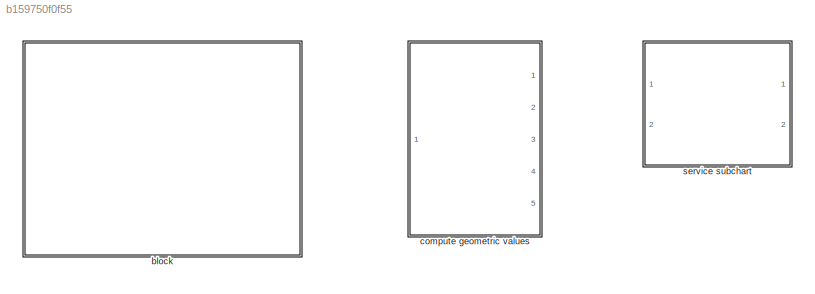
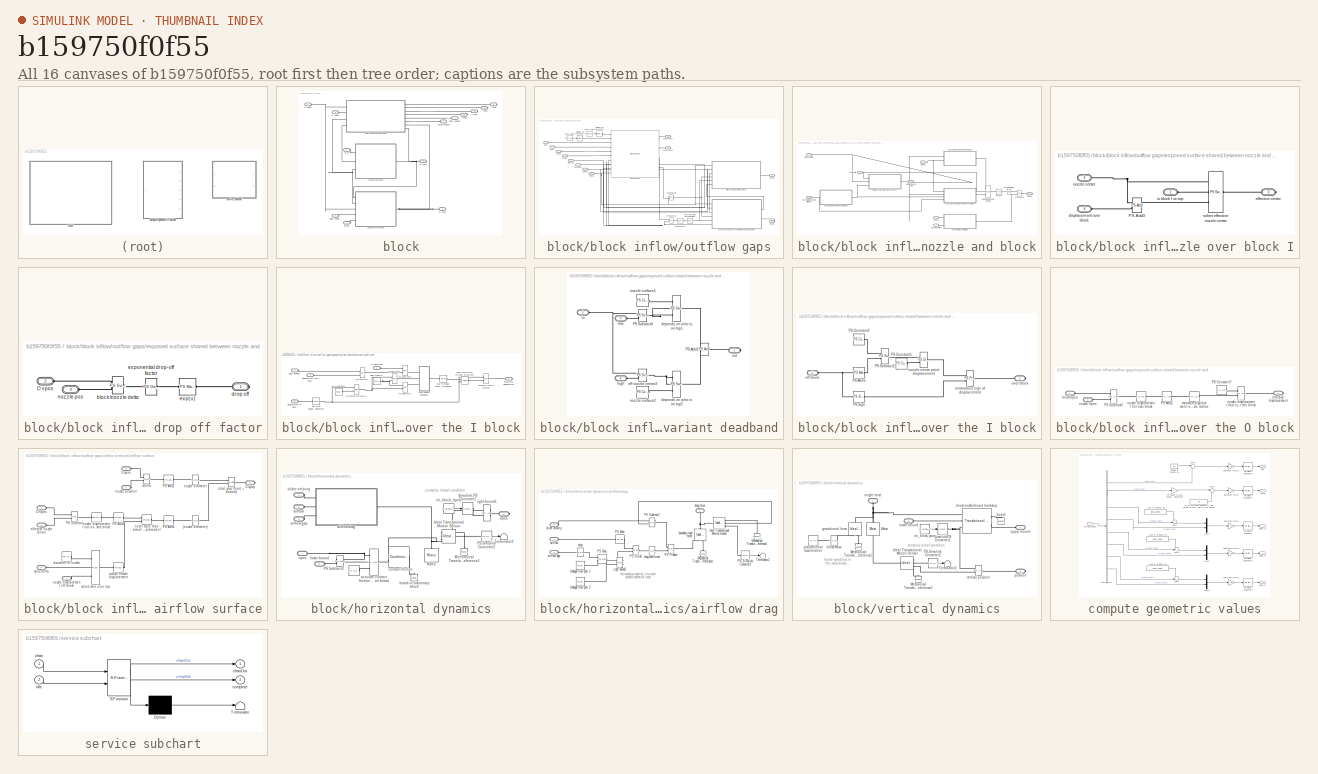
[diagram: thumbnail index - all 16 canvases of the model, root first then tree order]
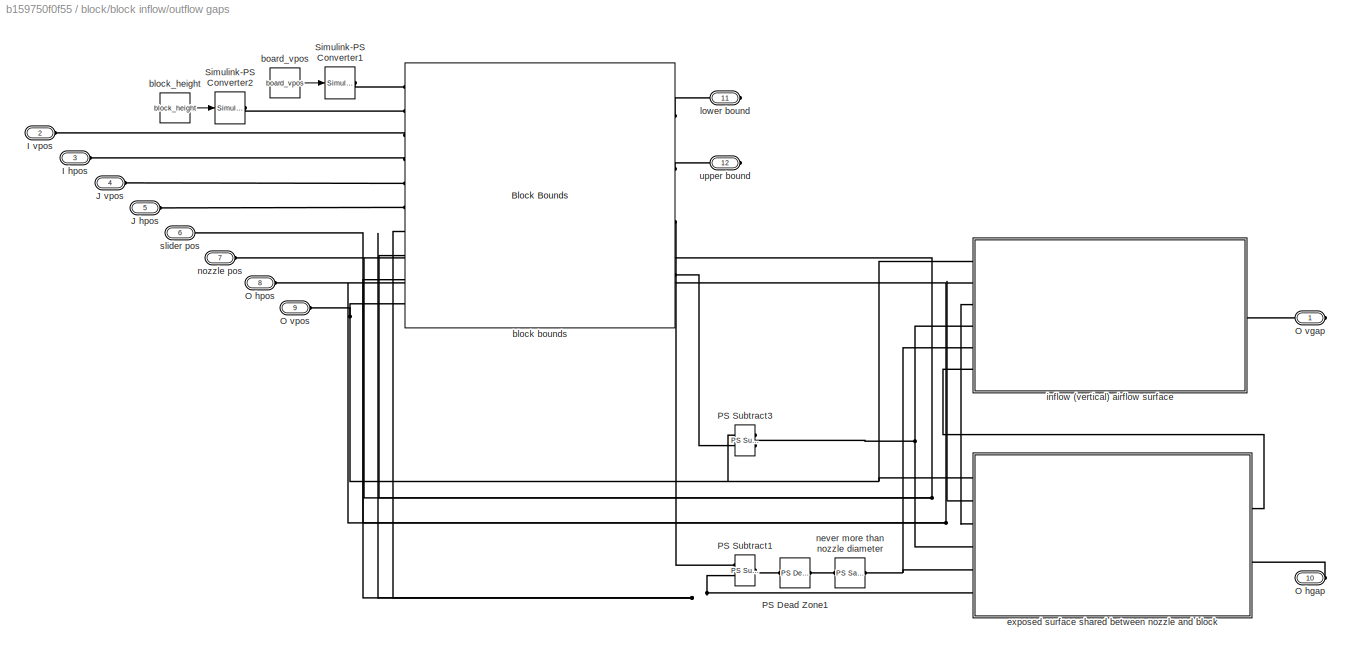
MODEL slx_b159750f0f55
KIND library
BLOCK [SubSystem] block
  FunctionWithSeparateData = off
  MaskHideContents = off
  MinAlgLoopOccurrences = off
  Opaque = off
  Ports = [0, 0, 0, 0, 0, 7, 6]
  PropExecContextOutsideSubsystem = off
  RTWSystemCode = Auto
  RequestExecContextInheritance = off
BLOCK [PMIOPort] block/I hpos
  Port = 10
  Side = Right
BLOCK [PMIOPort] block/I vpos
  Port = 9
  Side = Right
BLOCK [PMIOPort] block/J hpos
  Port = 13
  Side = Right
BLOCK [PMIOPort] block/J vpos
  Port = 12
  Side = Right
BLOCK [PMIOPort] block/O hgap
  Port = 8
  Side = Left
BLOCK [PMIOPort] block/O hpos
  Port = 4
  Side = Right
BLOCK [PMIOPort] block/O vgap
  Port = 7
  Side = Left
BLOCK [PMIOPort] block/O vpos
  Port = 2
  Side = Right
BLOCK [PMIOPort] block/airflow
  Port = 5
  Side = Left
BLOCK [SubSystem] block/block inflow//outflow gaps
  FunctionWithSeparateData = off
  MaskHideContents = off
  MinAlgLoopOccurrences = off
  Opaque = off
  OpenFcn = open_system(gcb,'force');
  Ports = [0, 0, 0, 0, 0, 8, 4]
  PropExecContextOutsideSubsystem = off
  RTWSystemCode = Auto
  RequestExecContextInheritance = off
BLOCK [PMIOPort] block/block inflow//outflow gaps/I hpos
  Port = 3
  Side = Left
BLOCK [PMIOPort] block/block inflow//outflow gaps/I vpos
  Port = 2
  Side = Left
BLOCK [PMIOPort] block/block inflow//outflow gaps/J hpos
  Port = 5
  Side = Left
BLOCK [PMIOPort] block/block inflow//outflow gaps/J vpos
  Port = 4
  Side = Left
BLOCK [PMIOPort] block/block inflow//outflow gaps/O hgap
  Port = 10
  Side = Right
BLOCK [PMIOPort] block/block inflow//outflow gaps/O hpos
  Port = 8
  Side = Left
BLOCK [PMIOPort] block/block inflow//outflow gaps/O vgap
  Port = 1
  Side = Right
BLOCK [PMIOPort] block/block inflow//outflow gaps/O vpos
  Port = 9
  Side = Left
BLOCK [Reference] block/block inflow//outflow gaps/PS Dead Zone1  REF=fl_lib/Physical Signals/Nonlinear Operators/PS Dead Zone
  ClassName = dead_zone
  ComponentPath = foundation.physical_signal.nonlinear.dead_zone
  ComponentVariantNames = dead_zone
  ComponentVariants = foundation.physical_signal.nonlinear.dead_zone
  LocalVarLogging = []
  Ports = [0, 0, 0, 0, 0, 1, 1]
  SchemaVersion = 1
  SourceBlock = fl_lib/Physical Signals/Nonlinear Operators/PS Dead Zone
  SourceFile = foundation.physical_signal.nonlinear.dead_zone
  SourceType = PS Dead Zone
  lower_limit = -0.5*block_width+nozzle_radius
  lower_limit_unit = 1
  upper_limit = 0.5*block_width-nozzle_radius
  upper_limit_unit = 1
BLOCK [Reference] block/block inflow//outflow gaps/PS Subtract1  REF=fl_lib/Physical Signals/Functions/PS Subtract
  ClassName = subtract
  ComponentPath = foundation.physical_signal.functions.subtract
  ComponentVariantNames = subtract
  ComponentVariants = foundation.physical_signal.functions.subtract
  LocalVarLogging = []
  Ports = [0, 0, 0, 0, 0, 2, 1]
  SchemaVersion = 1
  SourceBlock = fl_lib/Physical Signals/Functions/PS Subtract
  SourceFile = foundation.physical_signal.functions.subtract
  SourceType = PS Subtract
BLOCK [Reference] block/block inflow//outflow gaps/PS Subtract3  REF=fl_lib/Physical Signals/Functions/PS Subtract
  ClassName = subtract
  ComponentPath = foundation.physical_signal.functions.subtract
  ComponentVariantNames = subtract
  ComponentVariants = foundation.physical_signal.functions.subtract
  LocalVarLogging = []
  Ports = [0, 0, 0, 0, 0, 2, 1]
  SchemaVersion = 1
  SourceBlock = fl_lib/Physical Signals/Functions/PS Subtract
  SourceFile = foundation.physical_signal.functions.subtract
  SourceType = PS Subtract
BLOCK [Reference] block/block inflow//outflow gaps/Simulink-PS Converter1  REF=nesl_utility/Simulink-PS
Converter
  AffineConversion = off
  Frequencies = []
  InputFilterTimeConstant = .001
  InputFiltering = off
  LeftPortType = input
  NoiseDistribution = none
  NoiseParameters = []
  PhysicalDomain = network_engine_domain
  Ports = [1, 0, 0, 0, 0, 0, 1]
  PseudoPeriodic = off
  RightPortType = output
  SimscapeFilterOrder = 1
  SourceBlock = nesl_utility/Simulink-PS\nConverter
  SourceType = Simulink-PS\nConverter
  SubClassName = ps_input
  UdotUserProvided = []
  Unit = 1
BLOCK [Reference] block/block inflow//outflow gaps/Simulink-PS Converter2  REF=nesl_utility/Simulink-PS
Converter
  AffineConversion = off
  Frequencies = []
  InputFilterTimeConstant = .001
  InputFiltering = off
  LeftPortType = input
  NoiseDistribution = none
  NoiseParameters = []
  PhysicalDomain = network_engine_domain
  Ports = [1, 0, 0, 0, 0, 0, 1]
  PseudoPeriodic = off
  RightPortType = output
  SimscapeFilterOrder = 1
  SourceBlock = nesl_utility/Simulink-PS\nConverter
  SourceType = Simulink-PS\nConverter
  SubClassName = ps_input
  UdotUserProvided = []
  Unit = 1
BLOCK [Reference] block/block inflow//outflow gaps/block bounds  REF=cps_physics_lib/Block Bounds
  ClassName = block_bounds
  ComponentPath = cps_physics.block_bounds
  ComponentVariantNames = block_bounds
  ComponentVariants = cps_physics.block_bounds
  LocalVarDescs = |Block Height
  LocalVarLogging = []
  LocalVarNames = |block_height
  Ports = [0, 0, 0, 0, 0, 10, 4]
  SchemaVersion = 1
  SourceBlock = cps_physics_lib/Block Bounds
  SourceFile = cps_physics.block_bounds
  SourceType = Block Bounds
  block_height_Log = off
  block_width = block_width
  block_width_unit = m
  board_vpos_Log = off
  nozzle_radius = nozzle_radius
  nozzle_radius_unit = m
  vmargin = 1e-6
  vmargin_unit = m
BLOCK [Constant] block/block inflow//outflow gaps/block_height
  Value = block_height
BLOCK [Constant] block/block inflow//outflow gaps/board_vpos
  Value = board_vpos
BLOCK [SubSystem] block/block inflow//outflow gaps/exposed surface shared between nozzle and block
  FunctionWithSeparateData = off
  MaskHideContents = off
  MinAlgLoopOccurrences = off
  Opaque = off
  Ports = [0, 0, 0, 0, 0, 6, 2]
  PropExecContextOutsideSubsystem = off
  RTWSystemCode = Auto
  RequestExecContextInheritance = off
BLOCK [PMIOPort] block/block inflow//outflow gaps/exposed surface shared between nozzle and block/O hgap
  Port = 8
  Side = Right
BLOCK [PMIOPort] block/block inflow//outflow gaps/exposed surface shared between nozzle and block/O hpos
  Port = 3
  Side = Left
BLOCK [PMIOPort] block/block inflow//outflow gaps/exposed surface shared between nozzle and block/O vpos
  Port = 1
  Side = Left
BLOCK [Reference] block/block inflow//outflow gaps/exposed surface shared between nozzle and block/PS Abs7  REF=fl_lib/Physical Signals/Nonlinear Operators/PS Abs
  ClassName = abs
  ComponentPath = foundation.physical_signal.nonlinear.abs
  ComponentVariantNames = abs
  ComponentVariants = foundation.physical_signal.nonlinear.abs
  LocalVarLogging = []
  Ports = [0, 0, 0, 0, 0, 1, 1]
  SchemaVersion = 1
  SourceBlock = fl_lib/Physical Signals/Nonlinear Operators/PS Abs
  SourceFile = foundation.physical_signal.nonlinear.abs
  SourceType = PS Abs
BLOCK [Reference] block/block inflow//outflow gaps/exposed surface shared between nozzle and block/PS Product2  REF=fl_lib/Physical Signals/Functions/PS Product
  ClassName = product
  ComponentPath = foundation.physical_signal.functions.product
  ComponentVariantNames = product
  ComponentVariants = foundation.physical_signal.functions.product
  LocalVarLogging = []
  Ports = [0, 0, 0, 0, 0, 2, 1]
  SchemaVersion = 1
  SourceBlock = fl_lib/Physical Signals/Functions/PS Product
  SourceFile = foundation.physical_signal.functions.product
  SourceType = PS Product
BLOCK [SubSystem] block/block inflow//outflow gaps/exposed surface shared between nozzle and block/effective center of nozzle over block I
  FunctionWithSeparateData = off
  MaskHideContents = off
  MinAlgLoopOccurrences = off
  Opaque = off
  Ports = [0, 0, 0, 0, 0, 3, 1]
  PropExecContextOutsideSubsystem = off
  RTWSystemCode = Auto
  RequestExecContextInheritance = off
BLOCK [Reference] block/block inflow//outflow gaps/exposed surface shared between nozzle and block/effective center of nozzle over block I/PS Add3  REF=fl_lib/Physical Signals/Functions/PS Add
  ClassName = add
  ComponentPath = foundation.physical_signal.functions.add
  ComponentVariantNames = add
  ComponentVariants = foundation.physical_signal.functions.add
  LocalVarLogging = []
  Ports = [0, 0, 0, 0, 0, 2, 1]
  SchemaVersion = 1
  SourceBlock = fl_lib/Physical Signals/Functions/PS Add
  SourceFile = foundation.physical_signal.functions.add
  SourceType = PS Add
BLOCK [PMIOPort] block/block inflow//outflow gaps/exposed surface shared between nozzle and block/effective center of nozzle over block I/displacement over block
  Port = 4
  Side = Left
BLOCK [PMIOPort] block/block inflow//outflow gaps/exposed surface shared between nozzle and block/effective center of nozzle over block I/effective center
  Port = 3
  Side = Right
BLOCK [PMIOPort] block/block inflow//outflow gaps/exposed surface shared between nozzle and block/effective center of nozzle over block I/is block I on top
  Port = 1
  Side = Left
BLOCK [PMIOPort] block/block inflow//outflow gaps/exposed surface shared between nozzle and block/effective center of nozzle over block I/nozzle center
  Port = 2
  Side = Left
BLOCK [Reference] block/block inflow//outflow gaps/exposed surface shared between nozzle and block/effective center of nozzle over block I/select effective nozzle center  REF=fl_lib/Physical Signals/Nonlinear Operators/PS Switch
  ClassName = controlled_switch
  ComponentPath = foundation.physical_signal.nonlinear.controlled_switch
  ComponentVariantNames = controlled_switch
  ComponentVariants = foundation.physical_signal.nonlinear.controlled_switch
  LocalVarLogging = []
  Ports = [0, 0, 0, 0, 0, 3, 1]
  SchemaVersion = 1
  SourceBlock = fl_lib/Physical Signals/Nonlinear Operators/PS Switch
  SourceFile = foundation.physical_signal.nonlinear.controlled_switch
  SourceType = PS Switch
  Threshold = 0
  Threshold_unit = 1
BLOCK [PMIOPort] block/block inflow//outflow gaps/exposed surface shared between nozzle and block/effective nozzle center
  Port = 5
  Side = Right
BLOCK [SubSystem] block/block inflow//outflow gaps/exposed surface shared between nozzle and block/exponential drop off factor
  FunctionWithSeparateData = off
  MaskHideContents = off
  MinAlgLoopOccurrences = off
  Opaque = off
  Ports = [0, 0, 0, 0, 0, 2, 1]
  PropExecContextOutsideSubsystem = off
  RTWSystemCode = Auto
  RequestExecContextInheritance = off
BLOCK [PMIOPort] block/block inflow//outflow gaps/exposed surface shared between nozzle and block/exponential drop off factor/O vpos
  Port = 2
  Side = Left
BLOCK [Reference] block/block inflow//outflow gaps/exposed surface shared between nozzle and block/exponential drop off factor/block//nozzle delta  REF=fl_lib/Physical Signals/Functions/PS Subtract
  ClassName = subtract
  ComponentPath = foundation.physical_signal.functions.subtract
  ComponentVariantNames = subtract
  ComponentVariants = foundation.physical_signal.functions.subtract
  LocalVarLogging = []
  Ports = [0, 0, 0, 0, 0, 2, 1]
  SchemaVersion = 1
  SourceBlock = fl_lib/Physical Signals/Functions/PS Subtract
  SourceFile = foundation.physical_signal.functions.subtract
  SourceType = PS Subtract
BLOCK [PMIOPort] block/block inflow//outflow gaps/exposed surface shared between nozzle and block/exponential drop off factor/drop off
  Port = 1
  Side = Right
BLOCK [Reference] block/block inflow//outflow gaps/exposed surface shared between nozzle and block/exponential drop off factor/exp(u)  REF=fl_lib/Physical Signals/Functions/PS Math Function
  ClassName = math_function
  ComponentPath = foundation.physical_signal.functions.math_function
  ComponentVariantNames = math_function
  ComponentVariants = foundation.physical_signal.functions.math_function
  LocalVarLogging = []
  Ports = [0, 0, 0, 0, 0, 1, 1]
  SchemaVersion = 1
  SourceBlock = fl_lib/Physical Signals/Functions/PS Math Function
  SourceFile = foundation.physical_signal.functions.math_function
  SourceType = PS Math Function
  fcn_choice = 3
  fcn_choice_unit = 1
BLOCK [Reference] block/block inflow//outflow gaps/exposed surface shared between nozzle and block/exponential drop off factor/exponential drop-off factor  REF=fl_lib/Physical Signals/Functions/PS Gain
  ClassName = gain
  ComponentPath = foundation.physical_signal.functions.gain
  ComponentVariantNames = gain
  ComponentVariants = foundation.physical_signal.functions.gain
  LocalVarLogging = []
  Ports = [0, 0, 0, 0, 0, 1, 1]
  SchemaVersion = 1
  SourceBlock = fl_lib/Physical Signals/Functions/PS Gain
  SourceFile = foundation.physical_signal.functions.gain
  SourceType = PS Gain
  gain = 20
  gain_unit = 1
BLOCK [PMIOPort] block/block inflow//outflow gaps/exposed surface shared between nozzle and block/exponential drop off factor/nozzle pos
  Port = 3
  Side = Left
BLOCK [SubSystem] block/block inflow//outflow gaps/exposed surface shared between nozzle and block/exposed nozzle displacement over the I block
  FunctionWithSeparateData = off
  MaskHideContents = off
  MinAlgLoopOccurrences = off
  Opaque = off
  Ports = [0, 0, 0, 0, 0, 4, 1]
  PropExecContextOutsideSubsystem = off
  RTWSystemCode = Auto
  RequestExecContextInheritance = off
BLOCK [Reference] block/block inflow//outflow gaps/exposed surface shared between nozzle and block/exposed nozzle displacement over the I block/(effective surface)//2  REF=fl_lib/Physical Signals/Functions/PS Divide
  ClassName = divide
  ComponentPath = foundation.physical_signal.functions.divide
  ComponentVariantNames = divide
  ComponentVariants = foundation.physical_signal.functions.divide
  LocalVarLogging = []
  Ports = [0, 0, 0, 0, 0, 2, 1]
  SchemaVersion = 1
  SourceBlock = fl_lib/Physical Signals/Functions/PS Divide
  SourceFile = foundation.physical_signal.functions.divide
  SourceType = PS Divide
BLOCK [PMIOPort] block/block inflow//outflow gaps/exposed surface shared between nozzle and block/exposed nozzle displacement over the I block/O block hpos
  Port = 1
  Side = Left
BLOCK [Reference] block/block inflow//outflow gaps/exposed surface shared between nozzle and block/exposed nozzle displacement over the I block/PS Constant2  REF=fl_lib/Physical Signals/Sources/PS Constant
  ClassName = constant
  ComponentPath = foundation.physical_signal.sources.constant
  ComponentVariantNames = constant
  ComponentVariants = foundation.physical_signal.sources.constant
  LocalVarLogging = []
  Ports = [0, 0, 0, 0, 0, 0, 1]
  SchemaVersion = 1
  SourceBlock = fl_lib/Physical Signals/Sources/PS Constant
  SourceFile = foundation.physical_signal.sources.constant
  SourceType = PS Constant
  constant = 2
  constant_unit = 1
BLOCK [Reference] block/block inflow//outflow gaps/exposed surface shared between nozzle and block/exposed nozzle displacement over the I block/PS Subtract4  REF=fl_lib/Physical Signals/Functions/PS Subtract
  ClassName = subtract
  ComponentPath = foundation.physical_signal.functions.subtract
  ComponentVariantNames = subtract
  ComponentVariants = foundation.physical_signal.functions.subtract
  LocalVarLogging = []
  Ports = [0, 0, 0, 0, 0, 2, 1]
  SchemaVersion = 1
  SourceBlock = fl_lib/Physical Signals/Functions/PS Subtract
  SourceFile = foundation.physical_signal.functions.subtract
  SourceType = PS Subtract
BLOCK [Reference] block/block inflow//outflow gaps/exposed surface shared between nozzle and block/exposed nozzle displacement over the I block/PS Subtract7  REF=fl_lib/Physical Signals/Functions/PS Subtract
  ClassName = subtract
  ComponentPath = foundation.physical_signal.functions.subtract
  ComponentVariantNames = subtract
  ComponentVariants = foundation.physical_signal.functions.subtract
  LocalVarLogging = []
  Ports = [0, 0, 0, 0, 0, 2, 1]
  SchemaVersion = 1
  SourceBlock = fl_lib/Physical Signals/Functions/PS Subtract
  SourceFile = foundation.physical_signal.functions.subtract
  SourceType = PS Subtract
BLOCK [Reference] block/block inflow//outflow gaps/exposed surface shared between nozzle and block/exposed nozzle displacement over the I block/PS Subtract8  REF=fl_lib/Physical Signals/Functions/PS Subtract
  ClassName = subtract
  ComponentPath = foundation.physical_signal.functions.subtract
  ComponentVariantNames = subtract
  ComponentVariants = foundation.physical_signal.functions.subtract
  LocalVarLogging = []
  Ports = [0, 0, 0, 0, 0, 2, 1]
  SchemaVersion = 1
  SourceBlock = fl_lib/Physical Signals/Functions/PS Subtract
  SourceFile = foundation.physical_signal.functions.subtract
  SourceType = PS Subtract
BLOCK [Reference] block/block inflow//outflow gaps/exposed surface shared between nozzle and block/exposed nozzle displacement over the I block/PS Subtract9  REF=fl_lib/Physical Signals/Functions/PS Subtract
  ClassName = subtract
  ComponentPath = foundation.physical_signal.functions.subtract
  ComponentVariantNames = subtract
  ComponentVariants = foundation.physical_signal.functions.subtract
  LocalVarLogging = []
  Ports = [0, 0, 0, 0, 0, 2, 1]
  SchemaVersion = 1
  SourceBlock = fl_lib/Physical Signals/Functions/PS Subtract
  SourceFile = foundation.physical_signal.functions.subtract
  SourceType = PS Subtract
BLOCK [Reference] block/block inflow//outflow gaps/exposed surface shared between nozzle and block/exposed nozzle displacement over the I block/abs to enable minimum determination  REF=fl_lib/Physical Signals/Nonlinear Operators/PS Abs
  ClassName = abs
  ComponentPath = foundation.physical_signal.nonlinear.abs
  ComponentVariantNames = abs
  ComponentVariants = foundation.physical_signal.nonlinear.abs
  LocalVarLogging = []
  Ports = [0, 0, 0, 0, 0, 1, 1]
  SchemaVersion = 1
  SourceBlock = fl_lib/Physical Signals/Nonlinear Operators/PS Abs
  SourceFile = foundation.physical_signal.nonlinear.abs
  SourceType = PS Abs
BLOCK [Reference] block/block inflow//outflow gaps/exposed surface shared between nozzle and block/exposed nozzle displacement over the I block/abs total displacement to determine minimum with effective nozzle displacement  REF=fl_lib/Physical Signals/Nonlinear Operators/PS Abs
  ClassName = abs
  ComponentPath = foundation.physical_signal.nonlinear.abs
  ComponentVariantNames = abs
  ComponentVariants = foundation.physical_signal.nonlinear.abs
  LocalVarLogging = []
  Ports = [0, 0, 0, 0, 0, 1, 1]
  SchemaVersion = 1
  SourceBlock = fl_lib/Physical Signals/Nonlinear Operators/PS Abs
  SourceFile = foundation.physical_signal.nonlinear.abs
  SourceType = PS Abs
BLOCK [Reference] block/block inflow//outflow gaps/exposed surface shared between nozzle and block/exposed nozzle displacement over the I block/block width//2  REF=fl_lib/Physical Signals/Sources/PS Constant
  ClassName = constant
  ComponentPath = foundation.physical_signal.sources.constant
  ComponentVariantNames = constant
  ComponentVariants = foundation.physical_signal.sources.constant
  LocalVarLogging = []
  Ports = [0, 0, 0, 0, 0, 0, 1]
  SchemaVersion = 1
  SourceBlock = fl_lib/Physical Signals/Sources/PS Constant
  SourceFile = foundation.physical_signal.sources.constant
  SourceType = PS Constant
  constant = block_width/2
  constant_unit = 1
BLOCK [Reference] block/block inflow//outflow gaps/exposed surface shared between nozzle and block/exposed nozzle displacement over the I block/compute what is covered  REF=fl_lib/Physical Signals/Functions/PS Subtract
  ClassName = subtract
  ComponentPath = foundation.physical_signal.functions.subtract
  ComponentVariantNames = subtract
  ComponentVariants = foundation.physical_signal.functions.subtract
  LocalVarLogging = []
  Ports = [0, 0, 0, 0, 0, 2, 1]
  SchemaVersion = 1
  SourceBlock = fl_lib/Physical Signals/Functions/PS Subtract
  SourceFile = foundation.physical_signal.functions.subtract
  SourceType = PS Subtract
BLOCK [PMIOPort] block/block inflow//outflow gaps/exposed surface shared between nozzle and block/exposed nozzle displacement over the I block/displacement off block
  Port = 4
  Side = Left
BLOCK [PMIOPort] block/block inflow//outflow gaps/exposed surface shared between nozzle and block/exposed nozzle displacement over the I block/displacement over block
  Port = 3
  Side = Left
BLOCK [Reference] block/block inflow//outflow gaps/exposed surface shared between nozzle and block/exposed nozzle displacement over the I block/never more than effective nozzle surface  REF=fl_lib/Physical Signals/Nonlinear Operators/PS Min
  ClassName = min
  ComponentPath = foundation.physical_signal.nonlinear.min
  ComponentVariantNames = min
  ComponentVariants = foundation.physical_signal.nonlinear.min
  LocalVarLogging = []
  Ports = [0, 0, 0, 0, 0, 2, 1]
  SchemaVersion = 1
  SourceBlock = fl_lib/Physical Signals/Nonlinear Operators/PS Min
  SourceFile = foundation.physical_signal.nonlinear.min
  SourceType = PS Min
BLOCK [PMIOPort] block/block inflow//outflow gaps/exposed surface shared between nozzle and block/exposed nozzle displacement over the I block/slider position
  Port = 2
  Side = Left
BLOCK [SubSystem] block/block inflow//outflow gaps/exposed surface shared between nozzle and block/exposed nozzle displacement over the I block/time variant deadband
  FunctionWithSeparateData = off
  MaskHideContents = off
  MinAlgLoopOccurrences = off
  Opaque = off
  Ports = [0, 0, 0, 0, 0, 3, 1]
  PropExecContextOutsideSubsystem = off
  RTWSystemCode = Auto
  RequestExecContextInheritance = off
BLOCK [Reference] block/block inflow//outflow gaps/exposed surface shared between nozzle and block/exposed nozzle displacement over the I block/time variant deadband/PS Add1  REF=fl_lib/Physical Signals/Functions/PS Add
  ClassName = add
  ComponentPath = foundation.physical_signal.functions.add
  ComponentVariantNames = add
  ComponentVariants = foundation.physical_signal.functions.add
  LocalVarLogging = []
  Ports = [0, 0, 0, 0, 0, 2, 1]
  SchemaVersion = 1
  SourceBlock = fl_lib/Physical Signals/Functions/PS Add
  SourceFile = foundation.physical_signal.functions.add
  SourceType = PS Add
BLOCK [Reference] block/block inflow//outflow gaps/exposed surface shared between nozzle and block/exposed nozzle displacement over the I block/time variant deadband/PS Subtract4  REF=fl_lib/Physical Signals/Functions/PS Subtract
  ClassName = subtract
  ComponentPath = foundation.physical_signal.functions.subtract
  ComponentVariantNames = subtract
  ComponentVariants = foundation.physical_signal.functions.subtract
  LocalVarLogging = []
  Ports = [0, 0, 0, 0, 0, 2, 1]
  SchemaVersion = 1
  SourceBlock = fl_lib/Physical Signals/Functions/PS Subtract
  SourceFile = foundation.physical_signal.functions.subtract
  SourceType = PS Subtract
BLOCK [Reference] block/block inflow//outflow gaps/exposed surface shared between nozzle and block/exposed nozzle displacement over the I block/time variant deadband/depends on who is on top1  REF=fl_lib/Physical Signals/Nonlinear Operators/PS Switch
  ClassName = controlled_switch
  ComponentPath = foundation.physical_signal.nonlinear.controlled_switch
  ComponentVariantNames = controlled_switch
  ComponentVariants = foundation.physical_signal.nonlinear.controlled_switch
  LocalVarLogging = []
  Ports = [0, 0, 0, 0, 0, 3, 1]
  SchemaVersion = 1
  SourceBlock = fl_lib/Physical Signals/Nonlinear Operators/PS Switch
  SourceFile = foundation.physical_signal.nonlinear.controlled_switch
  SourceType = PS Switch
  Threshold = 0
  Threshold_unit = 1
BLOCK [Reference] block/block inflow//outflow gaps/exposed surface shared between nozzle and block/exposed nozzle displacement over the I block/time variant deadband/depends on who is on top2  REF=fl_lib/Physical Signals/Nonlinear Operators/PS Switch
  ClassName = controlled_switch
  ComponentPath = foundation.physical_signal.nonlinear.controlled_switch
  ComponentVariantNames = controlled_switch
  ComponentVariants = foundation.physical_signal.nonlinear.controlled_switch
  LocalVarLogging = []
  Ports = [0, 0, 0, 0, 0, 3, 1]
  SchemaVersion = 1
  SourceBlock = fl_lib/Physical Signals/Nonlinear Operators/PS Switch
  SourceFile = foundation.physical_signal.nonlinear.controlled_switch
  SourceType = PS Switch
  Threshold = 0
  Threshold_unit = 1
BLOCK [Reference] block/block inflow//outflow gaps/exposed surface shared between nozzle and block/exposed nozzle displacement over the I block/time variant deadband/eff nozzle center2  REF=fl_lib/Physical Signals/Functions/PS Subtract
  ClassName = subtract
  ComponentPath = foundation.physical_signal.functions.subtract
  ComponentVariantNames = subtract
  ComponentVariants = foundation.physical_signal.functions.subtract
  LocalVarLogging = []
  Ports = [0, 0, 0, 0, 0, 2, 1]
  SchemaVersion = 1
  SourceBlock = fl_lib/Physical Signals/Functions/PS Subtract
  SourceFile = foundation.physical_signal.functions.subtract
  SourceType = PS Subtract
BLOCK [PMIOPort] block/block inflow//outflow gaps/exposed surface shared between nozzle and block/exposed nozzle displacement over the I block/time variant deadband/high
  Port = 4
  Side = Left
BLOCK [PMIOPort] block/block inflow//outflow gaps/exposed surface shared between nozzle and block/exposed nozzle displacement over the I block/time variant deadband/in
  Port = 1
  Side = Left
BLOCK [PMIOPort] block/block inflow//outflow gaps/exposed surface shared between nozzle and block/exposed nozzle displacement over the I block/time variant deadband/low
  Port = 3
  Side = Left
BLOCK [Reference] block/block inflow//outflow gaps/exposed surface shared between nozzle and block/exposed nozzle displacement over the I block/time variant deadband/nozzle surface1  REF=fl_lib/Physical Signals/Sources/PS Constant
  ClassName = constant
  ComponentPath = foundation.physical_signal.sources.constant
  ComponentVariantNames = constant
  ComponentVariants = foundation.physical_signal.sources.constant
  LocalVarLogging = []
  Ports = [0, 0, 0, 0, 0, 0, 1]
  SchemaVersion = 1
  SourceBlock = fl_lib/Physical Signals/Sources/PS Constant
  SourceFile = foundation.physical_signal.sources.constant
  SourceType = PS Constant
  constant = 0
  constant_unit = 1
BLOCK [Reference] block/block inflow//outflow gaps/exposed surface shared between nozzle and block/exposed nozzle displacement over the I block/time variant deadband/nozzle surface2  REF=fl_lib/Physical Signals/Sources/PS Constant
  ClassName = constant
  ComponentPath = foundation.physical_signal.sources.constant
  ComponentVariantNames = constant
  ComponentVariants = foundation.physical_signal.sources.constant
  LocalVarLogging = []
  Ports = [0, 0, 0, 0, 0, 0, 1]
  SchemaVersion = 1
  SourceBlock = fl_lib/Physical Signals/Sources/PS Constant
  SourceFile = foundation.physical_signal.sources.constant
  SourceType = PS Constant
  constant = 0
  constant_unit = 1
BLOCK [PMIOPort] block/block inflow//outflow gaps/exposed surface shared between nozzle and block/exposed nozzle displacement over the I block/time variant deadband/out
  Port = 2
  Side = Right
BLOCK [PMIOPort] block/block inflow//outflow gaps/exposed surface shared between nozzle and block/exposed nozzle displacement over the I block/uncovered displacement
  Port = 5
  Side = Right
BLOCK [Reference] block/block inflow//outflow gaps/exposed surface shared between nozzle and block/nozzle diameter  REF=fl_lib/Physical Signals/Functions/PS Gain
  ClassName = gain
  ComponentPath = foundation.physical_signal.functions.gain
  ComponentVariantNames = gain
  ComponentVariants = foundation.physical_signal.functions.gain
  LocalVarLogging = []
  Ports = [0, 0, 0, 0, 0, 1, 1]
  SchemaVersion = 1
  SourceBlock = fl_lib/Physical Signals/Functions/PS Gain
  SourceFile = foundation.physical_signal.functions.gain
  SourceType = PS Gain
  gain = 2*nozzle_radius
  gain_unit = 1
BLOCK [PMIOPort] block/block inflow//outflow gaps/exposed surface shared between nozzle and block/nozzle displacement off I block
  Port = 6
  Side = Left
BLOCK [SubSystem] block/block inflow//outflow gaps/exposed surface shared between nozzle and block/nozzle displacement over the I block
  FunctionWithSeparateData = off
  MaskHideContents = off
  MinAlgLoopOccurrences = off
  Opaque = off
  Ports = [0, 0, 0, 0, 0, 1, 1]
  PropExecContextOutsideSubsystem = off
  RTWSystemCode = Auto
  RequestExecContextInheritance = off
BLOCK [Reference] block/block inflow//outflow gaps/exposed surface shared between nozzle and block/nozzle displacement over the I block/PS Abs6  REF=fl_lib/Physical Signals/Nonlinear Operators/PS Abs
  ClassName = abs
  ComponentPath = foundation.physical_signal.nonlinear.abs
  ComponentVariantNames = abs
  ComponentVariants = foundation.physical_signal.nonlinear.abs
  LocalVarLogging = []
  Ports = [0, 0, 0, 0, 0, 1, 1]
  SchemaVersion = 1
  SourceBlock = fl_lib/Physical Signals/Nonlinear Operators/PS Abs
  SourceFile = foundation.physical_signal.nonlinear.abs
  SourceType = PS Abs
BLOCK [Reference] block/block inflow//outflow gaps/exposed surface shared between nozzle and block/nozzle displacement over the I block/PS Constant1  REF=fl_lib/Physical Signals/Sources/PS Constant
  ClassName = constant
  ComponentPath = foundation.physical_signal.sources.constant
  ComponentVariantNames = constant
  ComponentVariants = foundation.physical_signal.sources.constant
  LocalVarLogging = []
  Ports = [0, 0, 0, 0, 0, 0, 1]
  SchemaVersion = 1
  SourceBlock = fl_lib/Physical Signals/Sources/PS Constant
  SourceFile = foundation.physical_signal.sources.constant
  SourceType = PS Constant
  constant = 2
  constant_unit = 1
BLOCK [Reference] block/block inflow//outflow gaps/exposed surface shared between nozzle and block/nozzle displacement over the I block/PS Constant3  REF=fl_lib/Physical Signals/Sources/PS Constant
  ClassName = constant
  ComponentPath = foundation.physical_signal.sources.constant
  ComponentVariantNames = constant
  ComponentVariants = foundation.physical_signal.sources.constant
  LocalVarLogging = []
  Ports = [0, 0, 0, 0, 0, 0, 1]
  SchemaVersion = 1
  SourceBlock = fl_lib/Physical Signals/Sources/PS Constant
  SourceFile = foundation.physical_signal.sources.constant
  SourceType = PS Constant
  constant = block_width
  constant_unit = 1
BLOCK [Reference] block/block inflow//outflow gaps/exposed surface shared between nozzle and block/nozzle displacement over the I block/PS Sign  REF=fl_lib/Physical Signals/Nonlinear Operators/PS Sign
  ClassName = sign
  ComponentPath = foundation.physical_signal.nonlinear.sign
  ComponentVariantNames = sign
  ComponentVariants = foundation.physical_signal.nonlinear.sign
  LocalVarLogging = []
  Ports = [0, 0, 0, 0, 0, 1, 1]
  SchemaVersion = 1
  SourceBlock = fl_lib/Physical Signals/Nonlinear Operators/PS Sign
  SourceFile = foundation.physical_signal.nonlinear.sign
  SourceType = PS Sign
BLOCK [Reference] block/block inflow//outflow gaps/exposed surface shared between nozzle and block/nozzle displacement over the I block/PS Subtract2  REF=fl_lib/Physical Signals/Functions/PS Subtract
  ClassName = subtract
  ComponentPath = foundation.physical_signal.functions.subtract
  ComponentVariantNames = subtract
  ComponentVariants = foundation.physical_signal.functions.subtract
  LocalVarLogging = []
  Ports = [0, 0, 0, 0, 0, 2, 1]
  SchemaVersion = 1
  SourceBlock = fl_lib/Physical Signals/Functions/PS Subtract
  SourceFile = foundation.physical_signal.functions.subtract
  SourceType = PS Subtract
BLOCK [Reference] block/block inflow//outflow gaps/exposed surface shared between nozzle and block/nozzle displacement over the I block/nozzle center point displacement  REF=fl_lib/Physical Signals/Functions/PS Divide
  ClassName = divide
  ComponentPath = foundation.physical_signal.functions.divide
  ComponentVariantNames = divide
  ComponentVariants = foundation.physical_signal.functions.divide
  LocalVarLogging = []
  Ports = [0, 0, 0, 0, 0, 2, 1]
  SchemaVersion = 1
  SourceBlock = fl_lib/Physical Signals/Functions/PS Divide
  SourceFile = foundation.physical_signal.functions.divide
  SourceType = PS Divide
BLOCK [PMIOPort] block/block inflow//outflow gaps/exposed surface shared between nozzle and block/nozzle displacement over the I block/off block
  Port = 1
  Side = Left
BLOCK [PMIOPort] block/block inflow//outflow gaps/exposed surface shared between nozzle and block/nozzle displacement over the I block/over block
  Port = 2
  Side = Right
BLOCK [Reference] block/block inflow//outflow gaps/exposed surface shared between nozzle and block/nozzle displacement over the I block/reintroduce sign of displacement  REF=fl_lib/Physical Signals/Functions/PS Product
  ClassName = product
  ComponentPath = foundation.physical_signal.functions.product
  ComponentVariantNames = product
  ComponentVariants = foundation.physical_signal.functions.product
  LocalVarLogging = []
  Ports = [0, 0, 0, 0, 0, 2, 1]
  SchemaVersion = 1
  SourceBlock = fl_lib/Physical Signals/Functions/PS Product
  SourceFile = foundation.physical_signal.functions.product
  SourceType = PS Product
BLOCK [SubSystem] block/block inflow//outflow gaps/exposed surface shared between nozzle and block/nozzle displacement over the O block
  FunctionWithSeparateData = off
  MaskHideContents = off
  MinAlgLoopOccurrences = off
  Opaque = off
  Ports = [0, 0, 0, 0, 0, 2, 1]
  PropExecContextOutsideSubsystem = off
  RTWSystemCode = Auto
  RequestExecContextInheritance = off
BLOCK [Reference] block/block inflow//outflow gaps/exposed surface shared between nozzle and block/nozzle displacement over the O block/PS Abs2  REF=fl_lib/Physical Signals/Nonlinear Operators/PS Abs
  ClassName = abs
  ComponentPath = foundation.physical_signal.nonlinear.abs
  ComponentVariantNames = abs
  ComponentVariants = foundation.physical_signal.nonlinear.abs
  LocalVarLogging = []
  Ports = [0, 0, 0, 0, 0, 1, 1]
  SchemaVersion = 1
  SourceBlock = fl_lib/Physical Signals/Nonlinear Operators/PS Abs
  SourceFile = foundation.physical_signal.nonlinear.abs
  SourceType = PS Abs
BLOCK [Reference] block/block inflow//outflow gaps/exposed surface shared between nozzle and block/nozzle displacement over the O block/PS Constant7  REF=fl_lib/Physical Signals/Sources/PS Constant
  ClassName = constant
  ComponentPath = foundation.physical_signal.sources.constant
  ComponentVariantNames = constant
  ComponentVariants = foundation.physical_signal.sources.constant
  LocalVarLogging = []
  Ports = [0, 0, 0, 0, 0, 0, 1]
  SchemaVersion = 1
  SourceBlock = fl_lib/Physical Signals/Sources/PS Constant
  SourceFile = foundation.physical_signal.sources.constant
  SourceType = PS Constant
  constant = 2*nozzle_radius
  constant_unit = 1
BLOCK [Reference] block/block inflow//outflow gaps/exposed surface shared between nozzle and block/nozzle displacement over the O block/PS Subtract5  REF=fl_lib/Physical Signals/Functions/PS Subtract
  ClassName = subtract
  ComponentPath = foundation.physical_signal.functions.subtract
  ComponentVariantNames = subtract
  ComponentVariants = foundation.physical_signal.functions.subtract
  LocalVarLogging = []
  Ports = [0, 0, 0, 0, 0, 2, 1]
  SchemaVersion = 1
  SourceBlock = fl_lib/Physical Signals/Functions/PS Subtract
  SourceFile = foundation.physical_signal.functions.subtract
  SourceType = PS Subtract
BLOCK [PMIOPort] block/block inflow//outflow gaps/exposed surface shared between nozzle and block/nozzle displacement over the O block/block hpos
  Port = 2
  Side = Left
BLOCK [PMIOPort] block/block inflow//outflow gaps/exposed surface shared between nozzle and block/nozzle displacement over the O block/effective displacement
  Port = 3
  Side = Right
BLOCK [Reference] block/block inflow//outflow gaps/exposed surface shared between nozzle and block/nozzle displacement over the O block/maximum displacement is the nozzle radius  REF=fl_lib/Physical Signals/Nonlinear Operators/PS Saturation
  ClassName = saturation
  ComponentPath = foundation.physical_signal.nonlinear.saturation
  ComponentVariantNames = saturation
  ComponentVariants = foundation.physical_signal.nonlinear.saturation
  LocalVarLogging = []
  Ports = [0, 0, 0, 0, 0, 1, 1]
  SchemaVersion = 1
  SourceBlock = fl_lib/Physical Signals/Nonlinear Operators/PS Saturation
  SourceFile = foundation.physical_signal.nonlinear.saturation
  SourceType = PS Saturation
  lower_limit = 0
  lower_limit_unit = 1
  upper_limit = 2*nozzle_radius
  upper_limit_unit = 1
BLOCK [Reference] block/block inflow//outflow gaps/exposed surface shared between nozzle and block/nozzle displacement over the O block/nozzle displacement not over block  REF=fl_lib/Physical Signals/Nonlinear Operators/PS Dead Zone
  ClassName = dead_zone
  ComponentPath = foundation.physical_signal.nonlinear.dead_zone
  ComponentVariantNames = dead_zone
  ComponentVariants = foundation.physical_signal.nonlinear.dead_zone
  LocalVarLogging = []
  Ports = [0, 0, 0, 0, 0, 1, 1]
  SchemaVersion = 1
  SourceBlock = fl_lib/Physical Signals/Nonlinear Operators/PS Dead Zone
  SourceFile = foundation.physical_signal.nonlinear.dead_zone
  SourceType = PS Dead Zone
  lower_limit = -0.5*block_width+nozzle_radius
  lower_limit_unit = 1
  upper_limit = 0.5*block_width-nozzle_radius
  upper_limit_unit = 1
BLOCK [Reference] block/block inflow//outflow gaps/exposed surface shared between nozzle and block/nozzle displacement over the O block/nozzle displacement that is over the block  REF=fl_lib/Physical Signals/Functions/PS Subtract
  ClassName = subtract
  ComponentPath = foundation.physical_signal.functions.subtract
  ComponentVariantNames = subtract
  ComponentVariants = foundation.physical_signal.functions.subtract
  LocalVarLogging = []
  Ports = [0, 0, 0, 0, 0, 2, 1]
  SchemaVersion = 1
  SourceBlock = fl_lib/Physical Signals/Functions/PS Subtract
  SourceFile = foundation.physical_signal.functions.subtract
  SourceType = PS Subtract
BLOCK [PMIOPort] block/block inflow//outflow gaps/exposed surface shared between nozzle and block/nozzle displacement over the O block/nozzle hpos
  Port = 1
  Side = Left
BLOCK [PMIOPort] block/block inflow//outflow gaps/exposed surface shared between nozzle and block/nozzle position
  Port = 2
  Side = Left
BLOCK [Reference] block/block inflow//outflow gaps/exposed surface shared between nozzle and block/select the block that is on top  REF=fl_lib/Physical Signals/Nonlinear Operators/PS Switch
  ClassName = controlled_switch
  ComponentPath = foundation.physical_signal.nonlinear.controlled_switch
  ComponentVariantNames = controlled_switch
  ComponentVariants = foundation.physical_signal.nonlinear.controlled_switch
  LocalVarLogging = []
  Ports = [0, 0, 0, 0, 0, 3, 1]
  SchemaVersion = 1
  SourceBlock = fl_lib/Physical Signals/Nonlinear Operators/PS Switch
  SourceFile = foundation.physical_signal.nonlinear.controlled_switch
  SourceType = PS Switch
  Threshold = 0
  Threshold_unit = 1
BLOCK [PMIOPort] block/block inflow//outflow gaps/exposed surface shared between nozzle and block/slider position
  Port = 7
  Side = Left
BLOCK [PMIOPort] block/block inflow//outflow gaps/exposed surface shared between nozzle and block/vpos delta
  Port = 4
  Side = Left
BLOCK [SubSystem] block/block inflow//outflow gaps/inflow (vertical) airflow surface
  FunctionWithSeparateData = off
  MaskHideContents = off
  MinAlgLoopOccurrences = off
  Opaque = off
  Ports = [0, 0, 0, 0, 0, 6, 1]
  PropExecContextOutsideSubsystem = off
  RTWSystemCode = Auto
  RequestExecContextInheritance = off
BLOCK [Reference] block/block inflow//outflow gaps/inflow (vertical) airflow surface/(nozzle diameter)  REF=fl_lib/Physical Signals/Functions/PS Gain
  ClassName = gain
  ComponentPath = foundation.physical_signal.functions.gain
  ComponentVariantNames = gain
  ComponentVariants = foundation.physical_signal.functions.gain
  LocalVarLogging = []
  Ports = [0, 0, 0, 0, 0, 1, 1]
  SchemaVersion = 1
  SourceBlock = fl_lib/Physical Signals/Functions/PS Gain
  SourceFile = foundation.physical_signal.functions.gain
  SourceType = PS Gain
  gain = 2*nozzle_radius
  gain_unit = 1
BLOCK [PMIOPort] block/block inflow//outflow gaps/inflow (vertical) airflow surface/O hpos
  Port = 4
  Side = Left
BLOCK [PMIOPort] block/block inflow//outflow gaps/inflow (vertical) airflow surface/O vgap
  Port = 3
  Side = Right
BLOCK [PMIOPort] block/block inflow//outflow gaps/inflow (vertical) airflow surface/O vpos
  Port = 1
  Side = Left
BLOCK [Reference] block/block inflow//outflow gaps/inflow (vertical) airflow surface/PS Abs1  REF=fl_lib/Physical Signals/Nonlinear Operators/PS Abs
  ClassName = abs
  ComponentPath = foundation.physical_signal.nonlinear.abs
  ComponentVariantNames = abs
  ComponentVariants = foundation.physical_signal.nonlinear.abs
  LocalVarLogging = []
  Ports = [0, 0, 0, 0, 0, 1, 1]
  SchemaVersion = 1
  SourceBlock = fl_lib/Physical Signals/Nonlinear Operators/PS Abs
  SourceFile = foundation.physical_signal.nonlinear.abs
  SourceType = PS Abs
BLOCK [Reference] block/block inflow//outflow gaps/inflow (vertical) airflow surface/PS Abs3  REF=fl_lib/Physical Signals/Nonlinear Operators/PS Abs
  ClassName = abs
  ComponentPath = foundation.physical_signal.nonlinear.abs
  ComponentVariantNames = abs
  ComponentVariants = foundation.physical_signal.nonlinear.abs
  LocalVarLogging = []
  Ports = [0, 0, 0, 0, 0, 1, 1]
  SchemaVersion = 1
  SourceBlock = fl_lib/Physical Signals/Nonlinear Operators/PS Abs
  SourceFile = foundation.physical_signal.nonlinear.abs
  SourceType = PS Abs
BLOCK [Reference] block/block inflow//outflow gaps/inflow (vertical) airflow surface/PS Abs5  REF=fl_lib/Physical Signals/Nonlinear Operators/PS Abs
  ClassName = abs
  ComponentPath = foundation.physical_signal.nonlinear.abs
  ComponentVariantNames = abs
  ComponentVariants = foundation.physical_signal.nonlinear.abs
  LocalVarLogging = []
  Ports = [0, 0, 0, 0, 0, 1, 1]
  SchemaVersion = 1
  SourceBlock = fl_lib/Physical Signals/Nonlinear Operators/PS Abs
  SourceFile = foundation.physical_signal.nonlinear.abs
  SourceType = PS Abs
BLOCK [Reference] block/block inflow//outflow gaps/inflow (vertical) airflow surface/PS Subtract  REF=fl_lib/Physical Signals/Functions/PS Subtract
  ClassName = subtract
  ComponentPath = foundation.physical_signal.functions.subtract
  ComponentVariantNames = subtract
  ComponentVariants = foundation.physical_signal.functions.subtract
  LocalVarLogging = []
  Ports = [0, 0, 0, 0, 0, 2, 1]
  SchemaVersion = 1
  SourceBlock = fl_lib/Physical Signals/Functions/PS Subtract
  SourceFile = foundation.physical_signal.functions.subtract
  SourceType = PS Subtract
BLOCK [Reference] block/block inflow//outflow gaps/inflow (vertical) airflow surface/actual nozzle displacement  REF=fl_lib/Physical Signals/Nonlinear Operators/PS Abs
  ClassName = abs
  ComponentPath = foundation.physical_signal.nonlinear.abs
  ComponentVariantNames = abs
  ComponentVariants = foundation.physical_signal.nonlinear.abs
  LocalVarLogging = []
  Ports = [0, 0, 0, 0, 0, 1, 1]
  SchemaVersion = 1
  SourceBlock = fl_lib/Physical Signals/Nonlinear Operators/PS Abs
  SourceFile = foundation.physical_signal.nonlinear.abs
  SourceType = PS Abs
BLOCK [Reference] block/block inflow//outflow gaps/inflow (vertical) airflow surface/diameter of nozzle  REF=fl_lib/Physical Signals/Sources/PS Constant
  ClassName = constant
  ComponentPath = foundation.physical_signal.sources.constant
  ComponentVariantNames = constant
  ComponentVariants = foundation.physical_signal.sources.constant
  LocalVarLogging = []
  Ports = [0, 0, 0, 0, 0, 0, 1]
  SchemaVersion = 1
  SourceBlock = fl_lib/Physical Signals/Sources/PS Constant
  SourceFile = foundation.physical_signal.sources.constant
  SourceType = PS Constant
  constant = 2*nozzle_radius
  constant_unit = 1
BLOCK [PMIOPort] block/block inflow//outflow gaps/inflow (vertical) airflow surface/effective nozzle center
  Port = 7
  Side = Left
BLOCK [Reference] block/block inflow//outflow gaps/inflow (vertical) airflow surface/never more than actual nozzle displacement  REF=fl_lib/Physical Signals/Nonlinear Operators/PS Min
  ClassName = min
  ComponentPath = foundation.physical_signal.nonlinear.min
  ComponentVariantNames = min
  ComponentVariants = foundation.physical_signal.nonlinear.min
  LocalVarLogging = []
  Ports = [0, 0, 0, 0, 0, 2, 1]
  SchemaVersion = 1
  SourceBlock = fl_lib/Physical Signals/Nonlinear Operators/PS Min
  SourceFile = foundation.physical_signal.nonlinear.min
  SourceType = PS Min
BLOCK [Reference] block/block inflow//outflow gaps/inflow (vertical) airflow surface/nozzle diameter  REF=fl_lib/Physical Signals/Functions/PS Gain
  ClassName = gain
  ComponentPath = foundation.physical_signal.functions.gain
  ComponentVariantNames = gain
  ComponentVariants = foundation.physical_signal.functions.gain
  LocalVarLogging = []
  Ports = [0, 0, 0, 0, 0, 1, 1]
  SchemaVersion = 1
  SourceBlock = fl_lib/Physical Signals/Functions/PS Gain
  SourceFile = foundation.physical_signal.functions.gain
  SourceType = PS Gain
  gain = 2*nozzle_radius
  gain_unit = 1
BLOCK [Reference] block/block inflow//outflow gaps/inflow (vertical) airflow surface/nozzle displacement not over exposed block  REF=fl_lib/Physical Signals/Nonlinear Operators/PS Dead Zone
  ClassName = dead_zone
  ComponentPath = foundation.physical_signal.nonlinear.dead_zone
  ComponentVariantNames = dead_zone
  ComponentVariants = foundation.physical_signal.nonlinear.dead_zone
  LocalVarLogging = []
  Ports = [0, 0, 0, 0, 0, 1, 1]
  SchemaVersion = 1
  SourceBlock = fl_lib/Physical Signals/Nonlinear Operators/PS Dead Zone
  SourceFile = foundation.physical_signal.nonlinear.dead_zone
  SourceType = PS Dead Zone
  lower_limit = -0.5*block_width+nozzle_radius
  lower_limit_unit = 1
  upper_limit = 0.5*block_width-nozzle_radius
  upper_limit_unit = 1
BLOCK [PMIOPort] block/block inflow//outflow gaps/inflow (vertical) airflow surface/nozzle displacement off block
  Port = 6
  Side = Left
BLOCK [PMIOPort] block/block inflow//outflow gaps/inflow (vertical) airflow surface/nozzle position
  Port = 2
  Side = Left
BLOCK [Reference] block/block inflow//outflow gaps/inflow (vertical) airflow surface/select who is on top  REF=fl_lib/Physical Signals/Nonlinear Operators/PS Switch
  ClassName = controlled_switch
  ComponentPath = foundation.physical_signal.nonlinear.controlled_switch
  ComponentVariantNames = controlled_switch
  ComponentVariants = foundation.physical_signal.nonlinear.controlled_switch
  LocalVarLogging = []
  Ports = [0, 0, 0, 0, 0, 3, 1]
  SchemaVersion = 1
  SourceBlock = fl_lib/Physical Signals/Nonlinear Operators/PS Switch
  SourceFile = foundation.physical_signal.nonlinear.controlled_switch
  SourceType = PS Switch
  Threshold = 0
  Threshold_unit = 1
BLOCK [Reference] block/block inflow//outflow gaps/inflow (vertical) airflow surface/total gap (front + bottom)  REF=fl_lib/Physical Signals/Functions/PS Add
  ClassName = add
  ComponentPath = foundation.physical_signal.functions.add
  ComponentVariantNames = add
  ComponentVariants = foundation.physical_signal.functions.add
  LocalVarLogging = []
  Ports = [0, 0, 0, 0, 0, 2, 1]
  SchemaVersion = 1
  SourceBlock = fl_lib/Physical Signals/Functions/PS Add
  SourceFile = foundation.physical_signal.functions.add
  SourceType = PS Add
BLOCK [Reference] block/block inflow//outflow gaps/inflow (vertical) airflow surface/vdelta  REF=fl_lib/Physical Signals/Functions/PS Subtract
  ClassName = subtract
  ComponentPath = foundation.physical_signal.functions.subtract
  ComponentVariantNames = subtract
  ComponentVariants = foundation.physical_signal.functions.subtract
  LocalVarLogging = []
  Ports = [0, 0, 0, 0, 0, 2, 1]
  SchemaVersion = 1
  SourceBlock = fl_lib/Physical Signals/Functions/PS Subtract
  SourceFile = foundation.physical_signal.functions.subtract
  SourceType = PS Subtract
BLOCK [PMIOPort] block/block inflow//outflow gaps/inflow (vertical) airflow surface/vpos delta
  Port = 5
  Side = Left
BLOCK [PMIOPort] block/block inflow//outflow gaps/lower bound
  Port = 11
  Side = Right
BLOCK [Reference] block/block inflow//outflow gaps/never more than nozzle diameter  REF=fl_lib/Physical Signals/Nonlinear Operators/PS Saturation
  ClassName = saturation
  ComponentPath = foundation.physical_signal.nonlinear.saturation
  ComponentVariantNames = saturation
  ComponentVariants = foundation.physical_signal.nonlinear.saturation
  LocalVarLogging = []
  Ports = [0, 0, 0, 0, 0, 1, 1]
  SchemaVersion = 1
  SourceBlock = fl_lib/Physical Signals/Nonlinear Operators/PS Saturation
  SourceFile = foundation.physical_signal.nonlinear.saturation
  SourceType = PS Saturation
  lower_limit = -2*nozzle_radius
  lower_limit_unit = 1
  upper_limit = 2*nozzle_radius
  upper_limit_unit = 1
BLOCK [PMIOPort] block/block inflow//outflow gaps/nozzle pos
  Port = 7
  Side = Left
BLOCK [PMIOPort] block/block inflow//outflow gaps/slider pos
  Port = 6
  Side = Left
BLOCK [PMIOPort] block/block inflow//outflow gaps/upper bound
  Port = 12
  Side = Right
BLOCK [PMIOPort] block/force
  Port = 6
  Side = Left
BLOCK [SubSystem] block/horizontal dynamics
  FunctionWithSeparateData = off
  MaskHideContents = off
  MinAlgLoopOccurrences = off
  Opaque = off
  OpenFcn = open_system(gcb,'force');
  Ports = [0, 0, 0, 0, 0, 5, 1]
  PropExecContextOutsideSubsystem = off
  RTWSystemCode = Auto
  RequestExecContextInheritance = off
BLOCK [Reference] block/horizontal dynamics/   REF=fl_lib/Physical Signals/Sources/PS Constant
  ClassName = constant
  ComponentPath = foundation.physical_signal.sources.constant
  ComponentVariantNames = constant
  ComponentVariants = foundation.physical_signal.sources.constant
  LocalVarLogging = []
  Ports = [0, 0, 0, 0, 0, 0, 1]
  SchemaVersion = 1
  SourceBlock = fl_lib/Physical Signals/Sources/PS Constant
  SourceFile = foundation.physical_signal.sources.constant
  SourceType = PS Constant
  constant = 0
  constant_unit = 1
BLOCK [Reference] block/horizontal dynamics/Ideal Translational Motion Sensor  REF=fl_lib/Mechanical/Mechanical Sensors/Ideal Translational
Motion Sensor
  ClassName = velocity
  ComponentPath = foundation.mechanical.sensors.velocity
  ComponentVariantNames = velocity
  ComponentVariants = foundation.mechanical.sensors.velocity
  LocalVarDescs = |v|f|x
  LocalVarLogging = [0 0 0]
  LocalVarNames = |v|f|x
  Ports = [0, 0, 0, 0, 0, 1, 3]
  SchemaVersion = 1
  SourceBlock = fl_lib/Mechanical/Mechanical Sensors/Ideal Translational\nMotion Sensor
  SourceFile = foundation.mechanical.sensors.velocity
  SourceType = Ideal Translational\nMotion Sensor
  f_Log = off
  offset = 0
  offset_unit = m
  v_Log = off
  x_Log = off
BLOCK [Reference] block/horizontal dynamics/Mass  REF=fl_lib/Mechanical/Translational
Elements/Mass
  ClassName = mass
  ComponentPath = foundation.mechanical.translational.mass
  ComponentVariantNames = mass
  ComponentVariants = foundation.mechanical.translational.mass
  LocalVarDescs = |f
  LocalVarLogging = 0
  LocalVarNames = |f
  Ports = [0, 0, 0, 0, 0, 1]
  SchemaVersion = 1
  SourceBlock = fl_lib/Mechanical/Translational\nElements/Mass
  SourceFile = foundation.mechanical.translational.mass
  SourceType = Mass
  f_Log = off
  initial_velocity = 0
  initial_velocity_unit = m/s
  mass = block_mass
  mass_unit = kg
BLOCK [Reference] block/horizontal dynamics/Mechanical Translational Reference1  REF=fl_lib/Mechanical/Translational
Elements/Mechanical
Translational
Reference
  ClassName = reference
  ComponentPath = foundation.mechanical.translational.reference
  ComponentVariantNames = reference
  ComponentVariants = foundation.mechanical.translational.reference
  LocalVarDescs = |f
  LocalVarLogging = 0
  LocalVarNames = |f
  Ports = [0, 0, 0, 0, 0, 1]
  SchemaVersion = 1
  SourceBlock = fl_lib/Mechanical/Translational\nElements/Mechanical\nTranslational\nReference
  SourceFile = foundation.mechanical.translational.reference
  SourceType = Mechanical\nTranslational\nReference
  f_Log = off
BLOCK [Reference] block/horizontal dynamics/PS Subtract4  REF=fl_lib/Physical Signals/Functions/PS Subtract
  ClassName = subtract
  ComponentPath = foundation.physical_signal.functions.subtract
  ComponentVariantNames = subtract
  ComponentVariants = foundation.physical_signal.functions.subtract
  LocalVarLogging = []
  Ports = [0, 0, 0, 0, 0, 2, 1]
  SchemaVersion = 1
  SourceBlock = fl_lib/Physical Signals/Functions/PS Subtract
  SourceFile = foundation.physical_signal.functions.subtract
  SourceType = PS Subtract
BLOCK [Reference] block/horizontal dynamics/PS-Simulink Converter2  REF=nesl_utility/PS-Simulink
Converter
  AffineConversion = off
  Frequencies = []
  LeftPortType = input
  PhysicalDomain = network_engine_domain
  Ports = [0, 1, 0, 0, 0, 1]
  PseudoPeriodic = off
  RightPortType = output
  SourceBlock = nesl_utility/PS-Simulink\nConverter
  SourceType = PS-Simulink\nConverter
  SubClassName = ps_output
  Unit = 1
BLOCK [Reference] block/horizontal dynamics/Simulink-PS Converter1  REF=nesl_utility/Simulink-PS
Converter
  AffineConversion = off
  Frequencies = []
  InputFilterTimeConstant = .001
  InputFiltering = off
  LeftPortType = input
  NoiseDistribution = none
  NoiseParameters = []
  PhysicalDomain = network_engine_domain
  Ports = [1, 0, 0, 0, 0, 0, 1]
  PseudoPeriodic = off
  RightPortType = output
  SimscapeFilterOrder = 1
  SourceBlock = nesl_utility/Simulink-PS\nConverter
  SourceType = Simulink-PS\nConverter
  SubClassName = ps_input
  UdotUserProvided = []
  Unit = 1
BLOCK [Terminator] block/horizontal dynamics/Terminator2
BLOCK [Reference] block/horizontal dynamics/activate contact friction when on board  REF=fl_lib/Physical Signals/Nonlinear Operators/PS Switch
  ClassName = controlled_switch
  ComponentPath = foundation.physical_signal.nonlinear.controlled_switch
  ComponentVariantNames = controlled_switch
  ComponentVariants = foundation.physical_signal.nonlinear.controlled_switch
  LocalVarLogging = []
  Ports = [0, 0, 0, 0, 0, 3, 1]
  SchemaVersion = 1
  SourceBlock = fl_lib/Physical Signals/Nonlinear Operators/PS Switch
  SourceFile = foundation.physical_signal.nonlinear.controlled_switch
  SourceType = PS Switch
  Threshold = 0
  Threshold_unit = 1
BLOCK [PMIOPort] block/horizontal dynamics/airflow
  Port = 6
  Side = Left
BLOCK [SubSystem] block/horizontal dynamics/airflow drag
  FunctionWithSeparateData = off
  MaskHideContents = off
  MinAlgLoopOccurrences = off
  Opaque = off
  Ports = [0, 0, 0, 0, 0, 3, 1]
  PropExecContextOutsideSubsystem = off
  RTWSystemCode = Auto
  RequestExecContextInheritance = off
BLOCK [Reference] block/horizontal dynamics/airflow drag/Ideal Translational Motion Sensor  REF=fl_lib/Mechanical/Mechanical Sensors/Ideal Translational
Motion Sensor
  ClassName = velocity
  ComponentPath = foundation.mechanical.sensors.velocity
  ComponentVariantNames = velocity
  ComponentVariants = foundation.mechanical.sensors.velocity
  LocalVarDescs = |v|f|x
  LocalVarLogging = [0 0 0]
  LocalVarNames = |v|f|x
  Ports = [0, 0, 0, 0, 0, 1, 3]
  SchemaVersion = 1
  SourceBlock = fl_lib/Mechanical/Mechanical Sensors/Ideal Translational\nMotion Sensor
  SourceFile = foundation.mechanical.sensors.velocity
  SourceType = Ideal Translational\nMotion Sensor
  f_Log = off
  offset = 0
  offset_unit = m
  v_Log = off
  x_Log = off
BLOCK [Reference] block/horizontal dynamics/airflow drag/Mechanical Translational Reference  REF=fl_lib/Mechanical/Translational
Elements/Mechanical
Translational
Reference
  ClassName = reference
  ComponentPath = foundation.mechanical.translational.reference
  ComponentVariantNames = reference
  ComponentVariants = foundation.mechanical.translational.reference
  LocalVarDescs = |f
  LocalVarLogging = 0
  LocalVarNames = |f
  Ports = [0, 0, 0, 0, 0, 1]
  SchemaVersion = 1
  SourceBlock = fl_lib/Mechanical/Translational\nElements/Mechanical\nTranslational\nReference
  SourceFile = foundation.mechanical.translational.reference
  SourceType = Mechanical\nTranslational\nReference
  f_Log = off
BLOCK [Reference] block/horizontal dynamics/airflow drag/Mechanical Translational Reference1  REF=fl_lib/Mechanical/Translational
Elements/Mechanical
Translational
Reference
  ClassName = reference
  ComponentPath = foundation.mechanical.translational.reference
  ComponentVariantNames = reference
  ComponentVariants = foundation.mechanical.translational.reference
  LocalVarDescs = |f
  LocalVarLogging = 0
  LocalVarNames = |f
  Ports = [0, 0, 0, 0, 0, 1]
  SchemaVersion = 1
  SourceBlock = fl_lib/Mechanical/Translational\nElements/Mechanical\nTranslational\nReference
  SourceFile = foundation.mechanical.translational.reference
  SourceType = Mechanical\nTranslational\nReference
  f_Log = off
BLOCK [Reference] block/horizontal dynamics/airflow drag/PS Abs  REF=fl_lib/Physical Signals/Nonlinear Operators/PS Abs
  ClassName = abs
  ComponentPath = foundation.physical_signal.nonlinear.abs
  ComponentVariantNames = abs
  ComponentVariants = foundation.physical_signal.nonlinear.abs
  LocalVarLogging = []
  Ports = [0, 0, 0, 0, 0, 1, 1]
  SchemaVersion = 1
  SourceBlock = fl_lib/Physical Signals/Nonlinear Operators/PS Abs
  SourceFile = foundation.physical_signal.nonlinear.abs
  SourceType = PS Abs
BLOCK [Reference] block/horizontal dynamics/airflow drag/PS Divide  REF=fl_lib/Physical Signals/Functions/PS Divide
  ClassName = divide
  ComponentPath = foundation.physical_signal.functions.divide
  ComponentVariantNames = divide
  ComponentVariants = foundation.physical_signal.functions.divide
  LocalVarLogging = []
  Ports = [0, 0, 0, 0, 0, 2, 1]
  SchemaVersion = 1
  SourceBlock = fl_lib/Physical Signals/Functions/PS Divide
  SourceFile = foundation.physical_signal.functions.divide
  SourceType = PS Divide
BLOCK [Reference] block/horizontal dynamics/airflow drag/PS Max  REF=fl_lib/Physical Signals/Nonlinear Operators/PS Max
  ClassName = max
  ComponentPath = foundation.physical_signal.nonlinear.max
  ComponentVariantNames = max
  ComponentVariants = foundation.physical_signal.nonlinear.max
  LocalVarLogging = []
  Ports = [0, 0, 0, 0, 0, 2, 1]
  SchemaVersion = 1
  SourceBlock = fl_lib/Physical Signals/Nonlinear Operators/PS Max
  SourceFile = foundation.physical_signal.nonlinear.max
  SourceType = PS Max
BLOCK [Reference] block/horizontal dynamics/airflow drag/PS Product  REF=fl_lib/Physical Signals/Functions/PS Product
  ClassName = product
  ComponentPath = foundation.physical_signal.functions.product
  ComponentVariantNames = product
  ComponentVariants = foundation.physical_signal.functions.product
  LocalVarLogging = []
  Ports = [0, 0, 0, 0, 0, 2, 1]
  SchemaVersion = 1
  SourceBlock = fl_lib/Physical Signals/Functions/PS Product
  SourceFile = foundation.physical_signal.functions.product
  SourceType = PS Product
BLOCK [Reference] block/horizontal dynamics/airflow drag/PS Subtract2  REF=fl_lib/Physical Signals/Functions/PS Subtract
  ClassName = subtract
  ComponentPath = foundation.physical_signal.functions.subtract
  ComponentVariantNames = subtract
  ComponentVariants = foundation.physical_signal.functions.subtract
  LocalVarLogging = []
  Ports = [0, 0, 0, 0, 0, 2, 1]
  SchemaVersion = 1
  SourceBlock = fl_lib/Physical Signals/Functions/PS Subtract
  SourceFile = foundation.physical_signal.functions.subtract
  SourceType = PS Subtract
BLOCK [Reference] block/horizontal dynamics/airflow drag/PS-Simulink Converter2  REF=nesl_utility/PS-Simulink
Converter
  AffineConversion = off
  Frequencies = []
  LeftPortType = input
  PhysicalDomain = network_engine_domain
  Ports = [0, 1, 0, 0, 0, 1]
  PseudoPeriodic = off
  RightPortType = output
  SourceBlock = nesl_utility/PS-Simulink\nConverter
  SourceType = PS-Simulink\nConverter
  SubClassName = ps_output
  Unit = 1
BLOCK [Terminator] block/horizontal dynamics/airflow drag/Terminator2
BLOCK [PMIOPort] block/horizontal dynamics/airflow drag/airflow
  Port = 3
  Side = Left
BLOCK [PMIOPort] block/horizontal dynamics/airflow drag/airflow gap
  Port = 4
  Side = Left
BLOCK [Reference] block/horizontal dynamics/airflow drag/boundary layer force  REF=fl_lib/Mechanical/Mechanical Sources/Ideal Force Source
  ClassName = force
  ComponentPath = foundation.mechanical.sources.force
  ComponentVariantNames = force
  ComponentVariants = foundation.mechanical.sources.force
  LocalVarDescs = |v|f
  LocalVarLogging = [0 0]
  LocalVarNames = |v|f
  Ports = [0, 0, 0, 0, 0, 1, 2]
  SchemaVersion = 1
  SourceBlock = fl_lib/Mechanical/Mechanical Sources/Ideal Force Source
  SourceFile = foundation.mechanical.sources.force
  SourceType = Ideal Force Source
  f_Log = off
  v_Log = off
BLOCK [Reference] block/horizontal dynamics/airflow drag/drag  REF=fl_lib/Physical Signals/Functions/PS Gain
  ClassName = gain
  ComponentPath = foundation.physical_signal.functions.gain
  ComponentVariantNames = gain
  ComponentVariants = foundation.physical_signal.functions.gain
  LocalVarLogging = []
  Ports = [0, 0, 0, 0, 0, 1, 1]
  SchemaVersion = 1
  SourceBlock = fl_lib/Physical Signals/Functions/PS Gain
  SourceFile = foundation.physical_signal.functions.gain
  SourceType = PS Gain
  gain = 25
  gain_unit = 1
BLOCK [Reference] block/horizontal dynamics/airflow drag/drag coefficient  REF=fl_lib/Physical Signals/Functions/PS Gain
  ClassName = gain
  ComponentPath = foundation.physical_signal.functions.gain
  ComponentVariantNames = gain
  ComponentVariants = foundation.physical_signal.functions.gain
  LocalVarLogging = []
  Ports = [0, 0, 0, 0, 0, 1, 1]
  SchemaVersion = 1
  SourceBlock = fl_lib/Physical Signals/Functions/PS Gain
  SourceFile = foundation.physical_signal.functions.gain
  SourceType = PS Gain
  gain = 10.75e-1
  gain_unit = 1
BLOCK [PMIOPort] block/horizontal dynamics/airflow drag/drag force
  Port = 1
  Side = Right
BLOCK [Reference] block/horizontal dynamics/airflow drag/leakage flow part 1  REF=fl_lib/Physical Signals/Sources/PS Constant
  ClassName = constant
  ComponentPath = foundation.physical_signal.sources.constant
  ComponentVariantNames = constant
  ComponentVariants = foundation.physical_signal.sources.constant
  LocalVarLogging = []
  Ports = [0, 0, 0, 0, 0, 0, 1]
  SchemaVersion = 1
  SourceBlock = fl_lib/Physical Signals/Sources/PS Constant
  SourceFile = foundation.physical_signal.sources.constant
  SourceType = PS Constant
  constant = 20e-3
  constant_unit = 1
BLOCK [Reference] block/horizontal dynamics/airflow drag/leakage flow part 2  REF=fl_lib/Physical Signals/Sources/PS Constant
  ClassName = constant
  ComponentPath = foundation.physical_signal.sources.constant
  ComponentVariantNames = constant
  ComponentVariants = foundation.physical_signal.sources.constant
  LocalVarLogging = []
  Ports = [0, 0, 0, 0, 0, 0, 1]
  SchemaVersion = 1
  SourceBlock = fl_lib/Physical Signals/Sources/PS Constant
  SourceFile = foundation.physical_signal.sources.constant
  SourceType = PS Constant
  constant = 5e-3
  constant_unit = 1
BLOCK [Reference] block/horizontal dynamics/airflow drag/right bound1  REF=fl_lib/Physical Signals/Functions/PS Add
  ClassName = add
  ComponentPath = foundation.physical_signal.functions.add
  ComponentVariantNames = add
  ComponentVariants = foundation.physical_signal.functions.add
  LocalVarLogging = []
  Ports = [0, 0, 0, 0, 0, 2, 1]
  SchemaVersion = 1
  SourceBlock = fl_lib/Physical Signals/Functions/PS Add
  SourceFile = foundation.physical_signal.functions.add
  SourceType = PS Add
BLOCK [PMIOPort] block/horizontal dynamics/airflow drag/slider velocity
  Port = 2
  Side = Left
BLOCK [PMIOPort] block/horizontal dynamics/airflow gap
  Port = 3
  Side = Left
BLOCK [Reference] block/horizontal dynamics/board or stationary block  REF=fl_lib/Mechanical/Translational
Elements/Mechanical
Translational
Reference
  ClassName = reference
  ComponentPath = foundation.mechanical.translational.reference
  ComponentVariantNames = reference
  ComponentVariants = foundation.mechanical.translational.reference
  LocalVarDescs = |f
  LocalVarLogging = 0
  LocalVarNames = |f
  Ports = [0, 0, 0, 0, 0, 1]
  SchemaVersion = 1
  SourceBlock = fl_lib/Mechanical/Translational\nElements/Mechanical\nTranslational\nReference
  SourceFile = foundation.mechanical.translational.reference
  SourceType = Mechanical\nTranslational\nReference
  f_Log = off
BLOCK [Reference] block/horizontal dynamics/contact friction  REF=cps_physics_lib/Conditional
Translational Damper
  ClassName = conditional_damper
  ComponentPath = cps_physics.conditional_damper
  ComponentVariantNames = conditional_damper
  ComponentVariants = cps_physics.conditional_damper
  D = 100
  D_unit = N/(m/s)
  LocalVarDescs = |f|v
  LocalVarLogging = [0 0]
  LocalVarNames = |f|v
  Ports = [0, 0, 0, 0, 0, 2, 1]
  SchemaVersion = 1
  SourceBlock = cps_physics_lib/Conditional\nTranslational Damper
  SourceFile = cps_physics.conditional_damper
  SourceType = Conditional\nTranslational Damper
  f_Log = off
  th = 1e-12
  th_unit = 1
  v_Log = off
BLOCK [PMIOPort] block/horizontal dynamics/hpos
  Port = 5
  Side = Right
BLOCK [Constant] block/horizontal dynamics/ini_block_hpos
  Value = ini_block_hpos
BLOCK [PMIOPort] block/horizontal dynamics/lower bound
  Port = 2
  Side = Left
BLOCK [Reference] block/horizontal dynamics/right bound1  REF=fl_lib/Physical Signals/Functions/PS Add
  ClassName = add
  ComponentPath = foundation.physical_signal.functions.add
  ComponentVariantNames = add
  ComponentVariants = foundation.physical_signal.functions.add
  LocalVarLogging = []
  Ports = [0, 0, 0, 0, 0, 2, 1]
  SchemaVersion = 1
  SourceBlock = fl_lib/Physical Signals/Functions/PS Add
  SourceFile = foundation.physical_signal.functions.add
  SourceType = PS Add
BLOCK [PMIOPort] block/horizontal dynamics/slider velocity
  Port = 4
  Side = Left
BLOCK [PMIOPort] block/horizontal dynamics/vpos
  Port = 1
  Side = Left
BLOCK [PMIOPort] block/nozzle position
  Port = 11
  Side = Left
BLOCK [PMIOPort] block/slider position
  Port = 1
  Side = Left
BLOCK [PMIOPort] block/slider velocity
  Port = 3
  Side = Left
BLOCK [SubSystem] block/vertical dynamics
  FunctionWithSeparateData = off
  MaskHideContents = off
  MinAlgLoopOccurrences = off
  Opaque = off
  OpenFcn = open_system(gcb,'force');
  Ports = [0, 0, 0, 0, 0, 3, 1]
  PropExecContextOutsideSubsystem = off
  RTWSystemCode = Auto
  RequestExecContextInheritance = off
BLOCK [Reference] block/vertical dynamics/Ideal Translational Motion Sensor  REF=fl_lib/Mechanical/Mechanical Sensors/Ideal Translational
Motion Sensor
  ClassName = velocity
  ComponentPath = foundation.mechanical.sensors.velocity
  ComponentVariantNames = velocity
  ComponentVariants = foundation.mechanical.sensors.velocity
  LocalVarDescs = |v|f|x
  LocalVarLogging = [0 0 0]
  LocalVarNames = |v|f|x
  Ports = [0, 0, 0, 0, 0, 1, 3]
  SchemaVersion = 1
  SourceBlock = fl_lib/Mechanical/Mechanical Sensors/Ideal Translational\nMotion Sensor
  SourceFile = foundation.mechanical.sensors.velocity
  SourceType = Ideal Translational\nMotion Sensor
  f_Log = off
  offset = 0
  offset_unit = m
  v_Log = off
  x_Log = off
BLOCK [Reference] block/vertical dynamics/Mass  REF=fl_lib/Mechanical/Translational
Elements/Mass
  ClassName = mass
  ComponentPath = foundation.mechanical.translational.mass
  ComponentVariantNames = mass
  ComponentVariants = foundation.mechanical.translational.mass
  LocalVarDescs = |f
  LocalVarLogging = 0
  LocalVarNames = |f
  Ports = [0, 0, 0, 0, 0, 1]
  SchemaVersion = 1
  SourceBlock = fl_lib/Mechanical/Translational\nElements/Mass
  SourceFile = foundation.mechanical.translational.mass
  SourceType = Mass
  f_Log = off
  initial_velocity = 0
  initial_velocity_unit = m/s
  mass = block_mass
  mass_unit = kg
BLOCK [Reference] block/vertical dynamics/Mechanical Translational Reference1  REF=fl_lib/Mechanical/Translational
Elements/Mechanical
Translational
Reference
  ClassName = reference
  ComponentPath = foundation.mechanical.translational.reference
  ComponentVariantNames = reference
  ComponentVariants = foundation.mechanical.translational.reference
  LocalVarDescs = |f
  LocalVarLogging = 0
  LocalVarNames = |f
  Ports = [0, 0, 0, 0, 0, 1]
  SchemaVersion = 1
  SourceBlock = fl_lib/Mechanical/Translational\nElements/Mechanical\nTranslational\nReference
  SourceFile = foundation.mechanical.translational.reference
  SourceType = Mechanical\nTranslational\nReference
  f_Log = off
BLOCK [Reference] block/vertical dynamics/Mechanical Translational Reference2  REF=fl_lib/Mechanical/Translational
Elements/Mechanical
Translational
Reference
  ClassName = reference
  ComponentPath = foundation.mechanical.translational.reference
  ComponentVariantNames = reference
  ComponentVariants = foundation.mechanical.translational.reference
  LocalVarDescs = |f
  LocalVarLogging = 0
  LocalVarNames = |f
  Ports = [0, 0, 0, 0, 0, 1]
  SchemaVersion = 1
  SourceBlock = fl_lib/Mechanical/Translational\nElements/Mechanical\nTranslational\nReference
  SourceFile = foundation.mechanical.translational.reference
  SourceType = Mechanical\nTranslational\nReference
  f_Log = off
BLOCK [Reference] block/vertical dynamics/PS-Simulink Converter2  REF=nesl_utility/PS-Simulink
Converter
  AffineConversion = off
  Frequencies = []
  LeftPortType = input
  PhysicalDomain = network_engine_domain
  Ports = [0, 1, 0, 0, 0, 1]
  PseudoPeriodic = off
  RightPortType = output
  SourceBlock = nesl_utility/PS-Simulink\nConverter
  SourceType = PS-Simulink\nConverter
  SubClassName = ps_output
  Unit = 1
BLOCK [Reference] block/vertical dynamics/Simulink-PS Converter2  REF=nesl_utility/Simulink-PS
Converter
  AffineConversion = off
  Frequencies = []
  InputFilterTimeConstant = .001
  InputFiltering = off
  LeftPortType = input
  NoiseDistribution = none
  NoiseParameters = []
  PhysicalDomain = network_engine_domain
  Ports = [1, 0, 0, 0, 0, 0, 1]
  PseudoPeriodic = off
  RightPortType = output
  SimscapeFilterOrder = 1
  SourceBlock = nesl_utility/Simulink-PS\nConverter
  SourceType = Simulink-PS\nConverter
  SubClassName = ps_input
  UdotUserProvided = []
  Unit = 1
BLOCK [Terminator] block/vertical dynamics/Terminator2
BLOCK [Reference] block/vertical dynamics/block mass  REF=fl_lib/Physical Signals/Functions/PS Gain
  ClassName = gain
  ComponentPath = foundation.physical_signal.functions.gain
  ComponentVariantNames = gain
  ComponentVariants = foundation.physical_signal.functions.gain
  LocalVarLogging = []
  Ports = [0, 0, 0, 0, 0, 1, 1]
  SchemaVersion = 1
  SourceBlock = fl_lib/Physical Signals/Functions/PS Gain
  SourceFile = foundation.physical_signal.functions.gain
  SourceType = PS Gain
  gain = block_mass
  gain_unit = 1
BLOCK [Reference] block/vertical dynamics/block nozzle//board hardstop  REF=cps_physics_lib/Translational Hard
Stop With External
Initial Position
  ClassName = hardstop_external_ini
  ComponentPath = cps_physics.hardstop_external_ini
  ComponentVariantNames = hardstop_external_ini
  ComponentVariants = cps_physics.hardstop_external_ini
  D_low = 450
  D_low_unit = N/(m/s)
  D_up = 450
  D_up_unit = N/(m/s)
  LocalVarDescs = |f|v|x
  LocalVarLogging = [0 0 0]
  LocalVarNames = |f|v|x
  Ports = [0, 0, 0, 0, 0, 3, 2]
  SchemaVersion = 1
  SourceBlock = cps_physics_lib/Translational Hard\nStop With External\nInitial Position
  SourceFile = cps_physics.hardstop_external_ini
  SourceType = Translational Hard\nStop With External\nInitial Position
  f_Log = off
  stiff_low = 1e5
  stiff_low_unit = N/m
  stiff_up = 3e4
  stiff_up_unit = N/m
  v_Log = off
  x_Log = off
BLOCK [Reference] block/vertical dynamics/board  REF=fl_lib/Mechanical/Translational
Elements/Mechanical
Translational
Reference
  ClassName = reference
  ComponentPath = foundation.mechanical.translational.reference
  ComponentVariantNames = reference
  ComponentVariants = foundation.mechanical.translational.reference
  LocalVarDescs = |f
  LocalVarLogging = 0
  LocalVarNames = |f
  Ports = [0, 0, 0, 0, 0, 1]
  SchemaVersion = 1
  SourceBlock = fl_lib/Mechanical/Translational\nElements/Mechanical\nTranslational\nReference
  SourceFile = foundation.mechanical.translational.reference
  SourceType = Mechanical\nTranslational\nReference
  f_Log = off
BLOCK [Reference] block/vertical dynamics/gravitational acceleration  REF=fl_lib/Physical Signals/Sources/PS Constant
  ClassName = constant
  ComponentPath = foundation.physical_signal.sources.constant
  ComponentVariantNames = constant
  ComponentVariants = foundation.physical_signal.sources.constant
  LocalVarLogging = []
  Ports = [0, 0, 0, 0, 0, 0, 1]
  SchemaVersion = 1
  SourceBlock = fl_lib/Physical Signals/Sources/PS Constant
  SourceFile = foundation.physical_signal.sources.constant
  SourceType = PS Constant
  constant = -9.81
  constant_unit = 1
BLOCK [Reference] block/vertical dynamics/gravittional force  REF=fl_lib/Mechanical/Mechanical Sources/Ideal Force Source
  ClassName = force
  ComponentPath = foundation.mechanical.sources.force
  ComponentVariantNames = force
  ComponentVariants = foundation.mechanical.sources.force
  LocalVarDescs = |v|f
  LocalVarLogging = [0 0]
  LocalVarNames = |v|f
  Ports = [0, 0, 0, 0, 0, 1, 2]
  SchemaVersion = 1
  SourceBlock = fl_lib/Mechanical/Mechanical Sources/Ideal Force Source
  SourceFile = foundation.mechanical.sources.force
  SourceType = Ideal Force Source
  f_Log = off
  v_Log = off
BLOCK [Constant] block/vertical dynamics/ini_block_vpos
  Value = ini_block_vpos
BLOCK [PMIOPort] block/vertical dynamics/lower bound
  Port = 4
  Side = Left
BLOCK [PMIOPort] block/vertical dynamics/nozzle force
  Port = 1
  Side = Left
BLOCK [PMIOPort] block/vertical dynamics/position
  Port = 2
  Side = Right
BLOCK [PMIOPort] block/vertical dynamics/upper bound
  Port = 3
  Side = Left
BLOCK [Reference] block/vertical dynamics/vertical position  REF=fl_lib/Physical Signals/Functions/PS Add
  ClassName = add
  ComponentPath = foundation.physical_signal.functions.add
  ComponentVariantNames = add
  ComponentVariants = foundation.physical_signal.functions.add
  LocalVarLogging = []
  Ports = [0, 0, 0, 0, 0, 2, 1]
  SchemaVersion = 1
  SourceBlock = fl_lib/Physical Signals/Functions/PS Add
  SourceFile = foundation.physical_signal.functions.add
  SourceType = PS Add
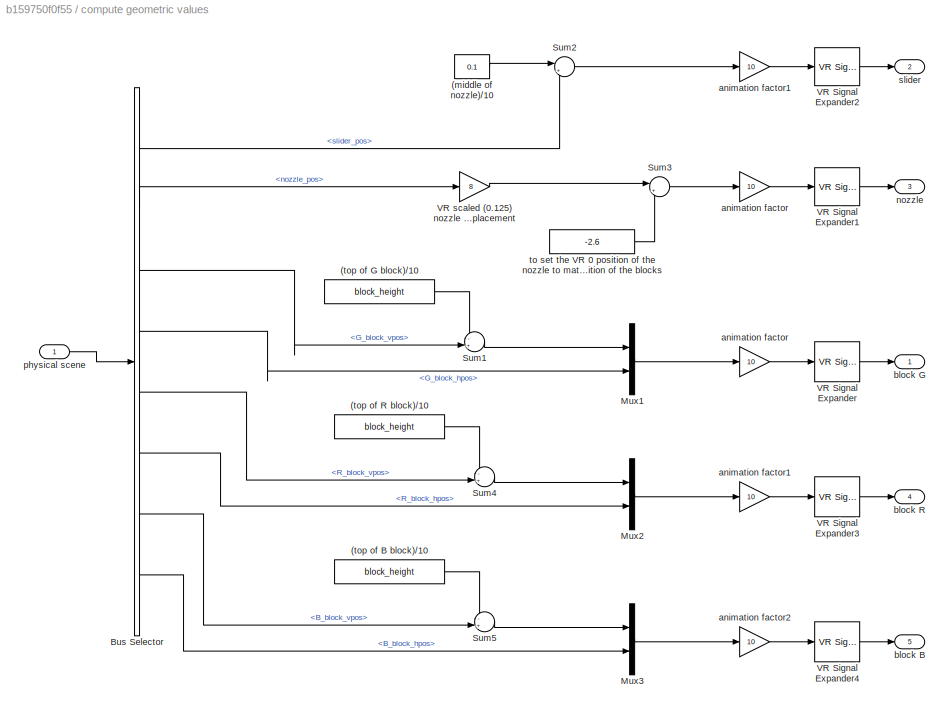
BLOCK [SubSystem] compute geometric values
  FunctionWithSeparateData = off
  MaskHideContents = off
  MinAlgLoopOccurrences = off
  Opaque = off
  Ports = [1, 5]
  PropExecContextOutsideSubsystem = off
  RTWSystemCode = Auto
  RequestExecContextInheritance = off
BLOCK [Gain] compute geometric values/ animation factor
  Gain = 10
  OutDataTypeStr = Inherit: Inherit via internal rule
  ParamDataTypeStr = Inherit: Inherit via internal rule
  SaturateOnIntegerOverflow = off
BLOCK [Gain] compute geometric values/ animation factor1
  Gain = 10
  OutDataTypeStr = Inherit: Inherit via internal rule
  ParamDataTypeStr = Inherit: Inherit via internal rule
  SaturateOnIntegerOverflow = off
BLOCK [Constant] compute geometric values/(middle of nozzle)//10
  Value = 0.1
BLOCK [Constant] compute geometric values/(top of B block)//10
  Value = block_height
BLOCK [Constant] compute geometric values/(top of G block)//10
  Value = block_height
BLOCK [Constant] compute geometric values/(top of R block)//10
  Value = block_height
BLOCK [BusSelector] compute geometric values/Bus Selector
  OutputSignals = slider_pos,nozzle_pos,G_block_vpos,G_block_hpos,R_block_vpos,R_block_hpos,B_block_vpos,B_block_hpos
  Ports = [1, 8]
BLOCK [Mux] compute geometric values/Mux1
  DisplayOption = bar
  Inputs = 2
  Ports = [2, 1]
BLOCK [Mux] compute geometric values/Mux2
  DisplayOption = bar
  Inputs = 2
  Ports = [2, 1]
BLOCK [Mux] compute geometric values/Mux3
  DisplayOption = bar
  Inputs = 2
  Ports = [2, 1]
BLOCK [Sum] compute geometric values/Sum1
  IconShape = round
  InputSameDT = off
  Inputs = -+|
  OutDataTypeStr = Inherit: Inherit via internal rule
  Ports = [2, 1]
  SaturateOnIntegerOverflow = off
BLOCK [Sum] compute geometric values/Sum2
  IconShape = round
  InputSameDT = off
  Inputs = |++
  OutDataTypeStr = Inherit: Inherit via internal rule
  Ports = [2, 1]
  SaturateOnIntegerOverflow = off
BLOCK [Sum] compute geometric values/Sum3
  IconShape = round
  InputSameDT = off
  Inputs = |++
  OutDataTypeStr = Inherit: Inherit via internal rule
  Ports = [2, 1]
  SaturateOnIntegerOverflow = off
BLOCK [Sum] compute geometric values/Sum4
  IconShape = round
  InputSameDT = off
  Inputs = -+|
  OutDataTypeStr = Inherit: Inherit via internal rule
  Ports = [2, 1]
  SaturateOnIntegerOverflow = off
BLOCK [Sum] compute geometric values/Sum5
  IconShape = round
  InputSameDT = off
  Inputs = -+|
  OutDataTypeStr = Inherit: Inherit via internal rule
  Ports = [2, 1]
  SaturateOnIntegerOverflow = off
BLOCK [Reference] compute geometric values/VR Signal Expander  REF=vrlib/VR Signal Expander
  Ports = [1, 1]
  SourceBlock = vrlib/VR Signal Expander
  SourceType = VR Signal Expander
  outidx = [2 3]
  outwidth = 3
BLOCK [Reference] compute geometric values/VR Signal Expander1  REF=vrlib/VR Signal Expander
  Ports = [1, 1]
  SourceBlock = vrlib/VR Signal Expander
  SourceType = VR Signal Expander
  outidx = [2]
  outwidth = 3
BLOCK [Reference] compute geometric values/VR Signal Expander2  REF=vrlib/VR Signal Expander
  Ports = [1, 1]
  SourceBlock = vrlib/VR Signal Expander
  SourceType = VR Signal Expander
  outidx = [3]
  outwidth = 3
BLOCK [Reference] compute geometric values/VR Signal Expander3  REF=vrlib/VR Signal Expander
  Ports = [1, 1]
  SourceBlock = vrlib/VR Signal Expander
  SourceType = VR Signal Expander
  outidx = [2 3]
  outwidth = 3
BLOCK [Reference] compute geometric values/VR Signal Expander4  REF=vrlib/VR Signal Expander
  Ports = [1, 1]
  SourceBlock = vrlib/VR Signal Expander
  SourceType = VR Signal Expander
  outidx = [2 3]
  outwidth = 3
BLOCK [Gain] compute geometric values/VR scaled (0.125) nozzle displacement
  Gain = 8
  OutDataTypeStr = Inherit: Inherit via internal rule
  ParamDataTypeStr = Inherit: Inherit via internal rule
  SaturateOnIntegerOverflow = off
BLOCK [Gain] compute geometric values/animation factor
  Gain = 10
  OutDataTypeStr = Inherit: Inherit via internal rule
  ParamDataTypeStr = Inherit: Inherit via internal rule
  SaturateOnIntegerOverflow = off
BLOCK [Gain] compute geometric values/animation factor1
  Gain = 10
  OutDataTypeStr = Inherit: Inherit via internal rule
  ParamDataTypeStr = Inherit: Inherit via internal rule
  SaturateOnIntegerOverflow = off
BLOCK [Gain] compute geometric values/animation factor2
  Gain = 10
  OutDataTypeStr = Inherit: Inherit via internal rule
  ParamDataTypeStr = Inherit: Inherit via internal rule
  SaturateOnIntegerOverflow = off
BLOCK [Outport] compute geometric values/block B
  IconDisplay = Port number
  Port = 5
BLOCK [Outport] compute geometric values/block G
  IconDisplay = Port number
BLOCK [Outport] compute geometric values/block R
  IconDisplay = Port number
  Port = 4
BLOCK [Outport] compute geometric values/nozzle
  IconDisplay = Port number
  Port = 3
BLOCK [Inport] compute geometric values/physical scene
  IconDisplay = Port number
  OutDataTypeStr = Bus: slBusGeometry
BLOCK [Outport] compute geometric values/slider
  IconDisplay = Port number
  Port = 2
BLOCK [Constant] compute geometric values/to set the VR 0 position of the nozzle to match up with the VR 0 position of the blocks 
  Value = -2.6
BLOCK [SubSystem] service subchart
  ErrorFcn = Stateflow.Translate.translate
  FunctionWithSeparateData = off
  MaskHideContents = off
  MinAlgLoopOccurrences = off
  Opaque = off
  PermitHierarchicalResolution = ExplicitOnly
  Ports = [2, 2]
  PropExecContextOutsideSubsystem = off
  RTWSystemCode = Auto
  RequestExecContextInheritance = off
  SFBlockType = Chart
  TreatAsAtomicUnit = on
BLOCK [Demux] service subchart/ Demux 
  Outputs = 1
  Ports = [1, 1]
BLOCK [S-Function] service subchart/ SFunction 
  EnableBusSupport = off
  FunctionName = sf_sfun
  PortCounts = [2 3]
  Ports = [2, 3]
  Tag = Stateflow S-Function cps_lib_v2 1
BLOCK [Terminator] service subchart/ Terminator 
BLOCK [Inport] service subchart/chan
  IconDisplay = Port number
BLOCK [Outport] service subchart/chanOut
  IconDisplay = Port number
BLOCK [Outport] service subchart/complete
  IconDisplay = Port number
  Port = 2
BLOCK [Inport] service subchart/idle
  IconDisplay = Port number
  Port = 2
ANNOTATION block/horizontal dynamics: contains initial condition
ANNOTATION block/horizontal dynamics/airflow drag: the max/plus construct is to work around a numerical issue
ANNOTATION block/vertical dynamics: Is also specified in the mass block ...
ANNOTATION block/vertical dynamics: contains initial condition
LINE block/block inflow//outflow gaps/block_height:1 -> block/block inflow//outflow gaps/Simulink-PS Converter2:1
LINE block/block inflow//outflow gaps/board_vpos:1 -> block/block inflow//outflow gaps/Simulink-PS Converter1:1
LINE block/horizontal dynamics/PS-Simulink Converter2:1 -> block/horizontal dynamics/Terminator2:1
LINE block/horizontal dynamics/airflow drag/PS-Simulink Converter2:1 -> block/horizontal dynamics/airflow drag/Terminator2:1
LINE block/horizontal dynamics/ini_block_hpos:1 -> block/horizontal dynamics/Simulink-PS Converter1:1
LINE block/vertical dynamics/PS-Simulink Converter2:1 -> block/vertical dynamics/Terminator2:1
LINE block/vertical dynamics/ini_block_vpos:1 -> block/vertical dynamics/Simulink-PS Converter2:1
LINE compute geometric values/ animation factor1:1 -> compute geometric values/VR Signal Expander2:1
LINE compute geometric values/ animation factor:1 -> compute geometric values/VR Signal Expander1:1
LINE compute geometric values/(middle of nozzle)//10:1 -> compute geometric values/Sum2:1
LINE compute geometric values/(top of B block)//10:1 -> compute geometric values/Sum5:1
LINE compute geometric values/(top of G block)//10:1 -> compute geometric values/Sum1:1
LINE compute geometric values/(top of R block)//10:1 -> compute geometric values/Sum4:1
LINE compute geometric values/Bus Selector:1 -> compute geometric values/Sum2:2
LINE compute geometric values/Bus Selector:2 -> compute geometric values/VR scaled (0.125) nozzle displacement:1
LINE compute geometric values/Bus Selector:3 -> compute geometric values/Sum1:2
LINE compute geometric values/Bus Selector:4 -> compute geometric values/Mux1:2
LINE compute geometric values/Bus Selector:5 -> compute geometric values/Sum4:2
LINE compute geometric values/Bus Selector:6 -> compute geometric values/Mux2:2
LINE compute geometric values/Bus Selector:7 -> compute geometric values/Sum5:2
LINE compute geometric values/Bus Selector:8 -> compute geometric values/Mux3:2
LINE compute geometric values/Mux1:1 -> compute geometric values/animation factor:1
LINE compute geometric values/Mux2:1 -> compute geometric values/animation factor1:1
LINE compute geometric values/Mux3:1 -> compute geometric values/animation factor2:1
LINE compute geometric values/Sum1:1 -> compute geometric values/Mux1:1
LINE compute geometric values/Sum2:1 -> compute geometric values/ animation factor1:1
LINE compute geometric values/Sum3:1 -> compute geometric values/ animation factor:1
LINE compute geometric values/Sum4:1 -> compute geometric values/Mux2:1
LINE compute geometric values/Sum5:1 -> compute geometric values/Mux3:1
LINE compute geometric values/VR Signal Expander1:1 -> compute geometric values/nozzle:1
LINE compute geometric values/VR Signal Expander2:1 -> compute geometric values/slider:1
LINE compute geometric values/VR Signal Expander3:1 -> compute geometric values/block R:1
LINE compute geometric values/VR Signal Expander4:1 -> compute geometric values/block B:1
LINE compute geometric values/VR Signal Expander:1 -> compute geometric values/block G:1
LINE compute geometric values/VR scaled (0.125) nozzle displacement:1 -> compute geometric values/Sum3:1
LINE compute geometric values/animation factor1:1 -> compute geometric values/VR Signal Expander3:1
LINE compute geometric values/animation factor2:1 -> compute geometric values/VR Signal Expander4:1
LINE compute geometric values/animation factor:1 -> compute geometric values/VR Signal Expander:1
LINE compute geometric values/physical scene:1 -> compute geometric values/Bus Selector:1
LINE compute geometric values/to set the VR 0 position of the nozzle to match up with the VR 0 position of the blocks :1 -> compute geometric values/Sum3:2
PLINE block/I hpos:RConn1 -- block/block inflow//outflow gaps:LConn2
PLINE block/I vpos:RConn1 -- block/block inflow//outflow gaps:LConn1
PLINE block/J hpos:RConn1 -- block/block inflow//outflow gaps:LConn4
PLINE block/J vpos:RConn1 -- block/block inflow//outflow gaps:LConn3
PLINE block/O hgap:RConn1 -- block/block inflow//outflow gaps:RConn2
PNET net1: block/O hpos:RConn1 -- block/block inflow//outflow gaps:LConn7 -- block/horizontal dynamics:RConn1
PNET net2: block/O vgap:RConn1 -- block/block inflow//outflow gaps:RConn1 -- block/horizontal dynamics:LConn3
PNET net3: block/O vpos:RConn1 -- block/block inflow//outflow gaps:LConn8 -- block/horizontal dynamics:LConn1 -- block/vertical dynamics:RConn1
PLINE block/airflow:RConn1 -- block/horizontal dynamics:LConn5
PLINE block/block inflow//outflow gaps/I hpos:RConn1 -- block/block inflow//outflow gaps/block bounds:LConn4
PLINE block/block inflow//outflow gaps/I vpos:RConn1 -- block/block inflow//outflow gaps/block bounds:LConn3
PLINE block/block inflow//outflow gaps/J hpos:RConn1 -- block/block inflow//outflow gaps/block bounds:LConn6
PLINE block/block inflow//outflow gaps/J vpos:RConn1 -- block/block inflow//outflow gaps/block bounds:LConn5
PLINE block/block inflow//outflow gaps/O hgap:RConn1 -- block/block inflow//outflow gaps/exposed surface shared between nozzle and block:RConn2
PNET net4: block/block inflow//outflow gaps/O hpos:RConn1 -- block/block inflow//outflow gaps/block bounds:LConn9 -- block/block inflow//outflow gaps/exposed surface shared between nozzle and block:LConn3 -- block/block inflow//outflow gaps/inflow (vertical) airflow surface:LConn3
PLINE block/block inflow//outflow gaps/O vgap:RConn1 -- block/block inflow//outflow gaps/inflow (vertical) airflow surface:RConn1
PNET net5: block/block inflow//outflow gaps/O vpos:RConn1 -- block/block inflow//outflow gaps/PS Subtract3:LConn1 -- block/block inflow//outflow gaps/block bounds:LConn10 -- block/block inflow//outflow gaps/exposed surface shared between nozzle and block:LConn1 -- block/block inflow//outflow gaps/inflow (vertical) airflow surface:LConn1
PLINE block/block inflow//outflow gaps/PS Dead Zone1:LConn1 -- block/block inflow//outflow gaps/PS Subtract1:RConn1
PLINE block/block inflow//outflow gaps/PS Dead Zone1:RConn1 -- block/block inflow//outflow gaps/never more than nozzle diameter:LConn1
PLINE block/block inflow//outflow gaps/PS Subtract1:LConn1 -- block/block inflow//outflow gaps/block bounds:RConn3
PNET net6: block/block inflow//outflow gaps/PS Subtract1:LConn2 -- block/block inflow//outflow gaps/block bounds:LConn7 -- block/block inflow//outflow gaps/exposed surface shared between nozzle and block:LConn6 -- block/block inflow//outflow gaps/slider pos:RConn1
PLINE block/block inflow//outflow gaps/PS Subtract3:LConn2 -- block/block inflow//outflow gaps/block bounds:RConn4
PNET net7: block/block inflow//outflow gaps/PS Subtract3:RConn1 -- block/block inflow//outflow gaps/exposed surface shared between nozzle and block:LConn4 -- block/block inflow//outflow gaps/inflow (vertical) airflow surface:LConn4
PLINE block/block inflow//outflow gaps/Simulink-PS Converter1:RConn1 -- block/block inflow//outflow gaps/block bounds:LConn1
PLINE block/block inflow//outflow gaps/Simulink-PS Converter2:RConn1 -- block/block inflow//outflow gaps/block bounds:LConn2
PNET net8: block/block inflow//outflow gaps/block bounds:LConn8 -- block/block inflow//outflow gaps/exposed surface shared between nozzle and block:LConn2 -- block/block inflow//outflow gaps/inflow (vertical) airflow surface:LConn2 -- block/block inflow//outflow gaps/nozzle pos:RConn1
PLINE block/block inflow//outflow gaps/block bounds:RConn1 -- block/block inflow//outflow gaps/lower bound:RConn1
PLINE block/block inflow//outflow gaps/block bounds:RConn2 -- block/block inflow//outflow gaps/upper bound:RConn1
PLINE block/block inflow//outflow gaps/exposed surface shared between nozzle and block/O hgap:RConn1 -- block/block inflow//outflow gaps/exposed surface shared between nozzle and block/PS Product2:RConn1
PNET net9: block/block inflow//outflow gaps/exposed surface shared between nozzle and block/O hpos:RConn1 -- block/block inflow//outflow gaps/exposed surface shared between nozzle and block/exposed nozzle displacement over the I block:LConn1 -- block/block inflow//outflow gaps/exposed surface shared between nozzle and block/nozzle displacement over the O block:LConn2
PLINE block/block inflow//outflow gaps/exposed surface shared between nozzle and block/O vpos:RConn1 -- block/block inflow//outflow gaps/exposed surface shared between nozzle and block/exponential drop off factor:LConn1
PLINE block/block inflow//outflow gaps/exposed surface shared between nozzle and block/PS Abs7:LConn1 -- block/block inflow//outflow gaps/exposed surface shared between nozzle and block/select the block that is on top:RConn1
PLINE block/block inflow//outflow gaps/exposed surface shared between nozzle and block/PS Abs7:RConn1 -- block/block inflow//outflow gaps/exposed surface shared between nozzle and block/nozzle diameter:LConn1
PLINE block/block inflow//outflow gaps/exposed surface shared between nozzle and block/PS Product2:LConn1 -- block/block inflow//outflow gaps/exposed surface shared between nozzle and block/nozzle diameter:RConn1
PLINE block/block inflow//outflow gaps/exposed surface shared between nozzle and block/PS Product2:LConn2 -- block/block inflow//outflow gaps/exposed surface shared between nozzle and block/exponential drop off factor:RConn1
PNET net10: block/block inflow//outflow gaps/exposed surface shared between nozzle and block/effective center of nozzle over block I/PS Add3:LConn1 -- block/block inflow//outflow gaps/exposed surface shared between nozzle and block/effective center of nozzle over block I/nozzle center:RConn1 -- block/block inflow//outflow gaps/exposed surface shared between nozzle and block/effective center of nozzle over block I/select effective nozzle center:LConn1
PLINE block/block inflow//outflow gaps/exposed surface shared between nozzle and block/effective center of nozzle over block I/PS Add3:LConn2 -- block/block inflow//outflow gaps/exposed surface shared between nozzle and block/effective center of nozzle over block I/displacement over block:RConn1
PLINE block/block inflow//outflow gaps/exposed surface shared between nozzle and block/effective center of nozzle over block I/PS Add3:RConn1 -- block/block inflow//outflow gaps/exposed surface shared between nozzle and block/effective center of nozzle over block I/select effective nozzle center:LConn3
PLINE block/block inflow//outflow gaps/exposed surface shared between nozzle and block/effective center of nozzle over block I/effective center:RConn1 -- block/block inflow//outflow gaps/exposed surface shared between nozzle and block/effective center of nozzle over block I/select effective nozzle center:RConn1
PLINE block/block inflow//outflow gaps/exposed surface shared between nozzle and block/effective center of nozzle over block I/is block I on top:RConn1 -- block/block inflow//outflow gaps/exposed surface shared between nozzle and block/effective center of nozzle over block I/select effective nozzle center:LConn2
PNET net11: block/block inflow//outflow gaps/exposed surface shared between nozzle and block/effective center of nozzle over block I:LConn1 -- block/block inflow//outflow gaps/exposed surface shared between nozzle and block/select the block that is on top:LConn2 -- block/block inflow//outflow gaps/exposed surface shared between nozzle and block/vpos delta:RConn1
PNET net12: block/block inflow//outflow gaps/exposed surface shared between nozzle and block/effective center of nozzle over block I:LConn2 -- block/block inflow//outflow gaps/exposed surface shared between nozzle and block/exposed nozzle displacement over the I block:LConn2 -- block/block inflow//outflow gaps/exposed surface shared between nozzle and block/nozzle displacement over the O block:LConn1 -- block/block inflow//outflow gaps/exposed surface shared between nozzle and block/slider position:RConn1
PNET net13: block/block inflow//outflow gaps/exposed surface shared between nozzle and block/effective center of nozzle over block I:LConn3 -- block/block inflow//outflow gaps/exposed surface shared between nozzle and block/exposed nozzle displacement over the I block:LConn3 -- block/block inflow//outflow gaps/exposed surface shared between nozzle and block/nozzle displacement over the I block:RConn1
PLINE block/block inflow//outflow gaps/exposed surface shared between nozzle and block/effective center of nozzle over block I:RConn1 -- block/block inflow//outflow gaps/exposed surface shared between nozzle and block/effective nozzle center:RConn1
PLINE block/block inflow//outflow gaps/exposed surface shared between nozzle and block/exponential drop off factor/O vpos:RConn1 -- block/block inflow//outflow gaps/exposed surface shared between nozzle and block/exponential drop off factor/block//nozzle delta:LConn1
PLINE block/block inflow//outflow gaps/exposed surface shared between nozzle and block/exponential drop off factor/block//nozzle delta:LConn2 -- block/block inflow//outflow gaps/exposed surface shared between nozzle and block/exponential drop off factor/nozzle pos:RConn1
PLINE block/block inflow//outflow gaps/exposed surface shared between nozzle and block/exponential drop off factor/block//nozzle delta:RConn1 -- block/block inflow//outflow gaps/exposed surface shared between nozzle and block/exponential drop off factor/exponential drop-off factor:LConn1
PLINE block/block inflow//outflow gaps/exposed surface shared between nozzle and block/exponential drop off factor/drop off:RConn1 -- block/block inflow//outflow gaps/exposed surface shared between nozzle and block/exponential drop off factor/exp(u):RConn1
PLINE block/block inflow//outflow gaps/exposed surface shared between nozzle and block/exponential drop off factor/exp(u):LConn1 -- block/block inflow//outflow gaps/exposed surface shared between nozzle and block/exponential drop off factor/exponential drop-off factor:RConn1
PLINE block/block inflow//outflow gaps/exposed surface shared between nozzle and block/exponential drop off factor:LConn2 -- block/block inflow//outflow gaps/exposed surface shared between nozzle and block/nozzle position:RConn1
PNET net14: block/block inflow//outflow gaps/exposed surface shared between nozzle and block/exposed nozzle displacement over the I block/(effective surface)//2:LConn1 -- block/block inflow//outflow gaps/exposed surface shared between nozzle and block/exposed nozzle displacement over the I block/abs total displacement to determine minimum with effective nozzle displacement:RConn1 -- block/block inflow//outflow gaps/exposed surface shared between nozzle and block/exposed nozzle displacement over the I block/compute what is covered:LConn1 -- block/block inflow//outflow gaps/exposed surface shared between nozzle and block/exposed nozzle displacement over the I block/never more than effective nozzle surface:LConn2
PLINE block/block inflow//outflow gaps/exposed surface shared between nozzle and block/exposed nozzle displacement over the I block/(effective surface)//2:LConn2 -- block/block inflow//outflow gaps/exposed surface shared between nozzle and block/exposed nozzle displacement over the I block/PS Constant2:RConn1
PNET net15: block/block inflow//outflow gaps/exposed surface shared between nozzle and block/exposed nozzle displacement over the I block/(effective surface)//2:RConn1 -- block/block inflow//outflow gaps/exposed surface shared between nozzle and block/exposed nozzle displacement over the I block/PS Subtract4:LConn2 -- block/block inflow//outflow gaps/exposed surface shared between nozzle and block/exposed nozzle displacement over the I block/PS Subtract9:LConn1
PLINE block/block inflow//outflow gaps/exposed surface shared between nozzle and block/exposed nozzle displacement over the I block/O block hpos:RConn1 -- block/block inflow//outflow gaps/exposed surface shared between nozzle and block/exposed nozzle displacement over the I block/PS Subtract8:LConn1
PNET net16: block/block inflow//outflow gaps/exposed surface shared between nozzle and block/exposed nozzle displacement over the I block/PS Subtract4:LConn1 -- block/block inflow//outflow gaps/exposed surface shared between nozzle and block/exposed nozzle displacement over the I block/PS Subtract9:LConn2 -- block/block inflow//outflow gaps/exposed surface shared between nozzle and block/exposed nozzle displacement over the I block/block width//2:RConn1
PLINE block/block inflow//outflow gaps/exposed surface shared between nozzle and block/exposed nozzle displacement over the I block/PS Subtract4:RConn1 -- block/block inflow//outflow gaps/exposed surface shared between nozzle and block/exposed nozzle displacement over the I block/time variant deadband:LConn3
PLINE block/block inflow//outflow gaps/exposed surface shared between nozzle and block/exposed nozzle displacement over the I block/PS Subtract7:LConn1 -- block/block inflow//outflow gaps/exposed surface shared between nozzle and block/exposed nozzle displacement over the I block/slider position:RConn1
PLINE block/block inflow//outflow gaps/exposed surface shared between nozzle and block/exposed nozzle displacement over the I block/PS Subtract7:LConn2 -- block/block inflow//outflow gaps/exposed surface shared between nozzle and block/exposed nozzle displacement over the I block/displacement over block:RConn1
PLINE block/block inflow//outflow gaps/exposed surface shared between nozzle and block/exposed nozzle displacement over the I block/PS Subtract7:RConn1 -- block/block inflow//outflow gaps/exposed surface shared between nozzle and block/exposed nozzle displacement over the I block/PS Subtract8:LConn2
PLINE block/block inflow//outflow gaps/exposed surface shared between nozzle and block/exposed nozzle displacement over the I block/PS Subtract8:RConn1 -- block/block inflow//outflow gaps/exposed surface shared between nozzle and block/exposed nozzle displacement over the I block/time variant deadband:LConn1
PLINE block/block inflow//outflow gaps/exposed surface shared between nozzle and block/exposed nozzle displacement over the I block/PS Subtract9:RConn1 -- block/block inflow//outflow gaps/exposed surface shared between nozzle and block/exposed nozzle displacement over the I block/time variant deadband:LConn2
PLINE block/block inflow//outflow gaps/exposed surface shared between nozzle and block/exposed nozzle displacement over the I block/abs to enable minimum determination:LConn1 -- block/block inflow//outflow gaps/exposed surface shared between nozzle and block/exposed nozzle displacement over the I block/time variant deadband:RConn1
PLINE block/block inflow//outflow gaps/exposed surface shared between nozzle and block/exposed nozzle displacement over the I block/abs to enable minimum determination:RConn1 -- block/block inflow//outflow gaps/exposed surface shared between nozzle and block/exposed nozzle displacement over the I block/never more than effective nozzle surface:LConn1
PLINE block/block inflow//outflow gaps/exposed surface shared between nozzle and block/exposed nozzle displacement over the I block/abs total displacement to determine minimum with effective nozzle displacement:LConn1 -- block/block inflow//outflow gaps/exposed surface shared between nozzle and block/exposed nozzle displacement over the I block/displacement off block:RConn1
PLINE block/block inflow//outflow gaps/exposed surface shared between nozzle and block/exposed nozzle displacement over the I block/compute what is covered:LConn2 -- block/block inflow//outflow gaps/exposed surface shared between nozzle and block/exposed nozzle displacement over the I block/never more than effective nozzle surface:RConn1
PLINE block/block inflow//outflow gaps/exposed surface shared between nozzle and block/exposed nozzle displacement over the I block/compute what is covered:RConn1 -- block/block inflow//outflow gaps/exposed surface shared between nozzle and block/exposed nozzle displacement over the I block/uncovered displacement:RConn1
PLINE block/block inflow//outflow gaps/exposed surface shared between nozzle and block/exposed nozzle displacement over the I block/time variant deadband/PS Add1:LConn1 -- block/block inflow//outflow gaps/exposed surface shared between nozzle and block/exposed nozzle displacement over the I block/time variant deadband/depends on who is on top1:RConn1
PLINE block/block inflow//outflow gaps/exposed surface shared between nozzle and block/exposed nozzle displacement over the I block/time variant deadband/PS Add1:LConn2 -- block/block inflow//outflow gaps/exposed surface shared between nozzle and block/exposed nozzle displacement over the I block/time variant deadband/depends on who is on top2:RConn1
PLINE block/block inflow//outflow gaps/exposed surface shared between nozzle and block/exposed nozzle displacement over the I block/time variant deadband/PS Add1:RConn1 -- block/block inflow//outflow gaps/exposed surface shared between nozzle and block/exposed nozzle displacement over the I block/time variant deadband/out:RConn1
PNET net17: block/block inflow//outflow gaps/exposed surface shared between nozzle and block/exposed nozzle displacement over the I block/time variant deadband/PS Subtract4:LConn1 -- block/block inflow//outflow gaps/exposed surface shared between nozzle and block/exposed nozzle displacement over the I block/time variant deadband/eff nozzle center2:LConn1 -- block/block inflow//outflow gaps/exposed surface shared between nozzle and block/exposed nozzle displacement over the I block/time variant deadband/in:RConn1
PLINE block/block inflow//outflow gaps/exposed surface shared between nozzle and block/exposed nozzle displacement over the I block/time variant deadband/PS Subtract4:LConn2 -- block/block inflow//outflow gaps/exposed surface shared between nozzle and block/exposed nozzle displacement over the I block/time variant deadband/low:RConn1
PNET net18: block/block inflow//outflow gaps/exposed surface shared between nozzle and block/exposed nozzle displacement over the I block/time variant deadband/PS Subtract4:RConn1 -- block/block inflow//outflow gaps/exposed surface shared between nozzle and block/exposed nozzle displacement over the I block/time variant deadband/depends on who is on top1:LConn2 -- block/block inflow//outflow gaps/exposed surface shared between nozzle and block/exposed nozzle displacement over the I block/time variant deadband/depends on who is on top1:LConn3
PLINE block/block inflow//outflow gaps/exposed surface shared between nozzle and block/exposed nozzle displacement over the I block/time variant deadband/depends on who is on top1:LConn1 -- block/block inflow//outflow gaps/exposed surface shared between nozzle and block/exposed nozzle displacement over the I block/time variant deadband/nozzle surface1:RConn1
PNET net19: block/block inflow//outflow gaps/exposed surface shared between nozzle and block/exposed nozzle displacement over the I block/time variant deadband/depends on who is on top2:LConn1 -- block/block inflow//outflow gaps/exposed surface shared between nozzle and block/exposed nozzle displacement over the I block/time variant deadband/depends on who is on top2:LConn2 -- block/block inflow//outflow gaps/exposed surface shared between nozzle and block/exposed nozzle displacement over the I block/time variant deadband/eff nozzle center2:RConn1
PLINE block/block inflow//outflow gaps/exposed surface shared between nozzle and block/exposed nozzle displacement over the I block/time variant deadband/depends on who is on top2:LConn3 -- block/block inflow//outflow gaps/exposed surface shared between nozzle and block/exposed nozzle displacement over the I block/time variant deadband/nozzle surface2:RConn1
PLINE block/block inflow//outflow gaps/exposed surface shared between nozzle and block/exposed nozzle displacement over the I block/time variant deadband/eff nozzle center2:LConn2 -- block/block inflow//outflow gaps/exposed surface shared between nozzle and block/exposed nozzle displacement over the I block/time variant deadband/high:RConn1
PNET net20: block/block inflow//outflow gaps/exposed surface shared between nozzle and block/exposed nozzle displacement over the I block:LConn4 -- block/block inflow//outflow gaps/exposed surface shared between nozzle and block/nozzle displacement off I block:RConn1 -- block/block inflow//outflow gaps/exposed surface shared between nozzle and block/nozzle displacement over the I block:LConn1
PLINE block/block inflow//outflow gaps/exposed surface shared between nozzle and block/exposed nozzle displacement over the I block:RConn1 -- block/block inflow//outflow gaps/exposed surface shared between nozzle and block/select the block that is on top:LConn3
PNET net21: block/block inflow//outflow gaps/exposed surface shared between nozzle and block/nozzle displacement over the I block/PS Abs6:LConn1 -- block/block inflow//outflow gaps/exposed surface shared between nozzle and block/nozzle displacement over the I block/PS Sign:LConn1 -- block/block inflow//outflow gaps/exposed surface shared between nozzle and block/nozzle displacement over the I block/off block:RConn1
PLINE block/block inflow//outflow gaps/exposed surface shared between nozzle and block/nozzle displacement over the I block/PS Abs6:RConn1 -- block/block inflow//outflow gaps/exposed surface shared between nozzle and block/nozzle displacement over the I block/PS Subtract2:LConn2
PLINE block/block inflow//outflow gaps/exposed surface shared between nozzle and block/nozzle displacement over the I block/PS Constant1:RConn1 -- block/block inflow//outflow gaps/exposed surface shared between nozzle and block/nozzle displacement over the I block/nozzle center point displacement:LConn2
PLINE block/block inflow//outflow gaps/exposed surface shared between nozzle and block/nozzle displacement over the I block/PS Constant3:RConn1 -- block/block inflow//outflow gaps/exposed surface shared between nozzle and block/nozzle displacement over the I block/PS Subtract2:LConn1
PLINE block/block inflow//outflow gaps/exposed surface shared between nozzle and block/nozzle displacement over the I block/PS Sign:RConn1 -- block/block inflow//outflow gaps/exposed surface shared between nozzle and block/nozzle displacement over the I block/reintroduce sign of displacement:LConn2
PLINE block/block inflow//outflow gaps/exposed surface shared between nozzle and block/nozzle displacement over the I block/PS Subtract2:RConn1 -- block/block inflow//outflow gaps/exposed surface shared between nozzle and block/nozzle displacement over the I block/nozzle center point displacement:LConn1
PLINE block/block inflow//outflow gaps/exposed surface shared between nozzle and block/nozzle displacement over the I block/nozzle center point displacement:RConn1 -- block/block inflow//outflow gaps/exposed surface shared between nozzle and block/nozzle displacement over the I block/reintroduce sign of displacement:LConn1
PLINE block/block inflow//outflow gaps/exposed surface shared between nozzle and block/nozzle displacement over the I block/over block:RConn1 -- block/block inflow//outflow gaps/exposed surface shared between nozzle and block/nozzle displacement over the I block/reintroduce sign of displacement:RConn1
PLINE block/block inflow//outflow gaps/exposed surface shared between nozzle and block/nozzle displacement over the O block/PS Abs2:LConn1 -- block/block inflow//outflow gaps/exposed surface shared between nozzle and block/nozzle displacement over the O block/nozzle displacement not over block:RConn1
PLINE block/block inflow//outflow gaps/exposed surface shared between nozzle and block/nozzle displacement over the O block/PS Abs2:RConn1 -- block/block inflow//outflow gaps/exposed surface shared between nozzle and block/nozzle displacement over the O block/maximum displacement is the nozzle radius:LConn1
PLINE block/block inflow//outflow gaps/exposed surface shared between nozzle and block/nozzle displacement over the O block/PS Constant7:RConn1 -- block/block inflow//outflow gaps/exposed surface shared between nozzle and block/nozzle displacement over the O block/nozzle displacement that is over the block:LConn1
PLINE block/block inflow//outflow gaps/exposed surface shared between nozzle and block/nozzle displacement over the O block/PS Subtract5:LConn1 -- block/block inflow//outflow gaps/exposed surface shared between nozzle and block/nozzle displacement over the O block/block hpos:RConn1
PLINE block/block inflow//outflow gaps/exposed surface shared between nozzle and block/nozzle displacement over the O block/PS Subtract5:LConn2 -- block/block inflow//outflow gaps/exposed surface shared between nozzle and block/nozzle displacement over the O block/nozzle hpos:RConn1
PLINE block/block inflow//outflow gaps/exposed surface shared between nozzle and block/nozzle displacement over the O block/PS Subtract5:RConn1 -- block/block inflow//outflow gaps/exposed surface shared between nozzle and block/nozzle displacement over the O block/nozzle displacement not over block:LConn1
PLINE block/block inflow//outflow gaps/exposed surface shared between nozzle and block/nozzle displacement over the O block/effective displacement:RConn1 -- block/block inflow//outflow gaps/exposed surface shared between nozzle and block/nozzle displacement over the O block/nozzle displacement that is over the block:RConn1
PLINE block/block inflow//outflow gaps/exposed surface shared between nozzle and block/nozzle displacement over the O block/maximum displacement is the nozzle radius:RConn1 -- block/block inflow//outflow gaps/exposed surface shared between nozzle and block/nozzle displacement over the O block/nozzle displacement that is over the block:LConn2
PLINE block/block inflow//outflow gaps/exposed surface shared between nozzle and block/nozzle displacement over the O block:RConn1 -- block/block inflow//outflow gaps/exposed surface shared between nozzle and block/select the block that is on top:LConn1
PNET net22: block/block inflow//outflow gaps/exposed surface shared between nozzle and block:LConn5 -- block/block inflow//outflow gaps/inflow (vertical) airflow surface:LConn5 -- block/block inflow//outflow gaps/never more than nozzle diameter:RConn1
PLINE block/block inflow//outflow gaps/exposed surface shared between nozzle and block:RConn1 -- block/block inflow//outflow gaps/inflow (vertical) airflow surface:LConn6
PLINE block/block inflow//outflow gaps/inflow (vertical) airflow surface/(nozzle diameter):LConn1 -- block/block inflow//outflow gaps/inflow (vertical) airflow surface/PS Abs5:RConn1
PLINE block/block inflow//outflow gaps/inflow (vertical) airflow surface/(nozzle diameter):RConn1 -- block/block inflow//outflow gaps/inflow (vertical) airflow surface/total gap (front + bottom):LConn2
PLINE block/block inflow//outflow gaps/inflow (vertical) airflow surface/O hpos:RConn1 -- block/block inflow//outflow gaps/inflow (vertical) airflow surface/PS Subtract:LConn1
PLINE block/block inflow//outflow gaps/inflow (vertical) airflow surface/O vgap:RConn1 -- block/block inflow//outflow gaps/inflow (vertical) airflow surface/total gap (front + bottom):RConn1
PLINE block/block inflow//outflow gaps/inflow (vertical) airflow surface/O vpos:RConn1 -- block/block inflow//outflow gaps/inflow (vertical) airflow surface/vdelta:LConn1
PLINE block/block inflow//outflow gaps/inflow (vertical) airflow surface/PS Abs1:LConn1 -- block/block inflow//outflow gaps/inflow (vertical) airflow surface/vdelta:RConn1
PLINE block/block inflow//outflow gaps/inflow (vertical) airflow surface/PS Abs1:RConn1 -- block/block inflow//outflow gaps/inflow (vertical) airflow surface/nozzle diameter:LConn1
PLINE block/block inflow//outflow gaps/inflow (vertical) airflow surface/PS Abs3:LConn1 -- block/block inflow//outflow gaps/inflow (vertical) airflow surface/nozzle displacement not over exposed block:RConn1
PLINE block/block inflow//outflow gaps/inflow (vertical) airflow surface/PS Abs3:RConn1 -- block/block inflow//outflow gaps/inflow (vertical) airflow surface/never more than actual nozzle displacement:LConn1
PLINE block/block inflow//outflow gaps/inflow (vertical) airflow surface/PS Abs5:LConn1 -- block/block inflow//outflow gaps/inflow (vertical) airflow surface/never more than actual nozzle displacement:RConn1
PLINE block/block inflow//outflow gaps/inflow (vertical) airflow surface/PS Subtract:LConn2 -- block/block inflow//outflow gaps/inflow (vertical) airflow surface/effective nozzle center:RConn1
PLINE block/block inflow//outflow gaps/inflow (vertical) airflow surface/PS Subtract:RConn1 -- block/block inflow//outflow gaps/inflow (vertical) airflow surface/nozzle displacement not over exposed block:LConn1
PLINE block/block inflow//outflow gaps/inflow (vertical) airflow surface/actual nozzle displacement:LConn1 -- block/block inflow//outflow gaps/inflow (vertical) airflow surface/select who is on top:RConn1
PLINE block/block inflow//outflow gaps/inflow (vertical) airflow surface/actual nozzle displacement:RConn1 -- block/block inflow//outflow gaps/inflow (vertical) airflow surface/never more than actual nozzle displacement:LConn2
PLINE block/block inflow//outflow gaps/inflow (vertical) airflow surface/diameter of nozzle:RConn1 -- block/block inflow//outflow gaps/inflow (vertical) airflow surface/select who is on top:LConn1
PLINE block/block inflow//outflow gaps/inflow (vertical) airflow surface/nozzle diameter:RConn1 -- block/block inflow//outflow gaps/inflow (vertical) airflow surface/total gap (front + bottom):LConn1
PLINE block/block inflow//outflow gaps/inflow (vertical) airflow surface/nozzle displacement off block:RConn1 -- block/block inflow//outflow gaps/inflow (vertical) airflow surface/select who is on top:LConn3
PLINE block/block inflow//outflow gaps/inflow (vertical) airflow surface/nozzle position:RConn1 -- block/block inflow//outflow gaps/inflow (vertical) airflow surface/vdelta:LConn2
PLINE block/block inflow//outflow gaps/inflow (vertical) airflow surface/select who is on top:LConn2 -- block/block inflow//outflow gaps/inflow (vertical) airflow surface/vpos delta:RConn1
PLINE block/block inflow//outflow gaps:LConn5 -- block/slider position:RConn1
PLINE block/block inflow//outflow gaps:LConn6 -- block/nozzle position:RConn1
PNET net23: block/block inflow//outflow gaps:RConn3 -- block/horizontal dynamics:LConn2 -- block/vertical dynamics:LConn3
PLINE block/block inflow//outflow gaps:RConn4 -- block/vertical dynamics:LConn2
PLINE block/force:RConn1 -- block/vertical dynamics:LConn1
PLINE block/horizontal dynamics/ :RConn1 -- block/horizontal dynamics/activate contact friction when on board:LConn3
PNET net24: block/horizontal dynamics/Ideal Translational Motion Sensor:LConn1 -- block/horizontal dynamics/Mass:LConn1 -- block/horizontal dynamics/airflow drag:RConn1 -- block/horizontal dynamics/contact friction:LConn1
PLINE block/horizontal dynamics/Ideal Translational Motion Sensor:RConn1 -- block/horizontal dynamics/Mechanical Translational Reference1:LConn1
PLINE block/horizontal dynamics/Ideal Translational Motion Sensor:RConn2 -- block/horizontal dynamics/PS-Simulink Converter2:LConn1
PLINE block/horizontal dynamics/Ideal Translational Motion Sensor:RConn3 -- block/horizontal dynamics/right bound1:LConn1
PNET net25: block/horizontal dynamics/PS Subtract4:LConn1 -- block/horizontal dynamics/activate contact friction when on board:LConn1 -- block/horizontal dynamics/vpos:RConn1
PLINE block/horizontal dynamics/PS Subtract4:LConn2 -- block/horizontal dynamics/lower bound:RConn1
PLINE block/horizontal dynamics/PS Subtract4:RConn1 -- block/horizontal dynamics/activate contact friction when on board:LConn2
PLINE block/horizontal dynamics/Simulink-PS Converter1:RConn1 -- block/horizontal dynamics/right bound1:LConn2
PLINE block/horizontal dynamics/activate contact friction when on board:RConn1 -- block/horizontal dynamics/contact friction:LConn2
PNET net26: block/horizontal dynamics/airflow drag/Ideal Translational Motion Sensor:LConn1 -- block/horizontal dynamics/airflow drag/boundary layer force:LConn1 -- block/horizontal dynamics/airflow drag/drag force:RConn1
PLINE block/horizontal dynamics/airflow drag/Ideal Translational Motion Sensor:RConn1 -- block/horizontal dynamics/airflow drag/Mechanical Translational Reference1:LConn1
PLINE block/horizontal dynamics/airflow drag/Ideal Translational Motion Sensor:RConn2 -- block/horizontal dynamics/airflow drag/PS Subtract2:LConn2
PLINE block/horizontal dynamics/airflow drag/Ideal Translational Motion Sensor:RConn3 -- block/horizontal dynamics/airflow drag/PS-Simulink Converter2:LConn1
PLINE block/horizontal dynamics/airflow drag/Mechanical Translational Reference:LConn1 -- block/horizontal dynamics/airflow drag/boundary layer force:RConn2
PLINE block/horizontal dynamics/airflow drag/PS Abs:LConn1 -- block/horizontal dynamics/airflow drag/airflow:RConn1
PLINE block/horizontal dynamics/airflow drag/PS Abs:RConn1 -- block/horizontal dynamics/airflow drag/PS Divide:LConn1
PLINE block/horizontal dynamics/airflow drag/PS Divide:LConn2 -- block/horizontal dynamics/airflow drag/right bound1:RConn1
PLINE block/horizontal dynamics/airflow drag/PS Divide:RConn1 -- block/horizontal dynamics/airflow drag/drag coefficient:LConn1
PLINE block/horizontal dynamics/airflow drag/PS Max:LConn1 -- block/horizontal dynamics/airflow drag/drag:RConn1
PLINE block/horizontal dynamics/airflow drag/PS Max:LConn2 -- block/horizontal dynamics/airflow drag/leakage flow part 1:RConn1
PLINE block/horizontal dynamics/airflow drag/PS Max:RConn1 -- block/horizontal dynamics/airflow drag/right bound1:LConn2
PLINE block/horizontal dynamics/airflow drag/PS Product:LConn1 -- block/horizontal dynamics/airflow drag/PS Subtract2:RConn1
PLINE block/horizontal dynamics/airflow drag/PS Product:LConn2 -- block/horizontal dynamics/airflow drag/drag coefficient:RConn1
PLINE block/horizontal dynamics/airflow drag/PS Product:RConn1 -- block/horizontal dynamics/airflow drag/boundary layer force:RConn1
PLINE block/horizontal dynamics/airflow drag/PS Subtract2:LConn1 -- block/horizontal dynamics/airflow drag/slider velocity:RConn1
PLINE block/horizontal dynamics/airflow drag/airflow gap:RConn1 -- block/horizontal dynamics/airflow drag/drag:LConn1
PLINE block/horizontal dynamics/airflow drag/leakage flow part 2:RConn1 -- block/horizontal dynamics/airflow drag/right bound1:LConn1
PLINE block/horizontal dynamics/airflow drag:LConn1 -- block/horizontal dynamics/slider velocity:RConn1
PLINE block/horizontal dynamics/airflow drag:LConn2 -- block/horizontal dynamics/airflow:RConn1
PLINE block/horizontal dynamics/airflow drag:LConn3 -- block/horizontal dynamics/airflow gap:RConn1
PLINE block/horizontal dynamics/board or stationary block:LConn1 -- block/horizontal dynamics/contact friction:RConn1
PLINE block/horizontal dynamics/hpos:RConn1 -- block/horizontal dynamics/right bound1:RConn1
PLINE block/horizontal dynamics:LConn4 -- block/slider velocity:RConn1
PNET net27: block/vertical dynamics/Ideal Translational Motion Sensor:LConn1 -- block/vertical dynamics/Mass:LConn1 -- block/vertical dynamics/block nozzle//board hardstop:LConn1 -- block/vertical dynamics/gravittional force:LConn1 -- block/vertical dynamics/nozzle force:RConn1
PLINE block/vertical dynamics/Ideal Translational Motion Sensor:RConn1 -- block/vertical dynamics/Mechanical Translational Reference1:LConn1
PLINE block/vertical dynamics/Ideal Translational Motion Sensor:RConn2 -- block/vertical dynamics/PS-Simulink Converter2:LConn1
PLINE block/vertical dynamics/Ideal Translational Motion Sensor:RConn3 -- block/vertical dynamics/vertical position:LConn2
PLINE block/vertical dynamics/Mechanical Translational Reference2:LConn1 -- block/vertical dynamics/gravittional force:RConn2
PNET net28: block/vertical dynamics/Simulink-PS Converter2:RConn1 -- block/vertical dynamics/block nozzle//board hardstop:LConn3 -- block/vertical dynamics/vertical position:LConn1
PLINE block/vertical dynamics/block mass:LConn1 -- block/vertical dynamics/gravitational acceleration:RConn1
PLINE block/vertical dynamics/block mass:RConn1 -- block/vertical dynamics/gravittional force:RConn1
PLINE block/vertical dynamics/block nozzle//board hardstop:LConn2 -- block/vertical dynamics/lower bound:RConn1
PLINE block/vertical dynamics/block nozzle//board hardstop:RConn1 -- block/vertical dynamics/board:LConn1
PLINE block/vertical dynamics/block nozzle//board hardstop:RConn2 -- block/vertical dynamics/upper bound:RConn1
PLINE block/vertical dynamics/position:RConn1 -- block/vertical dynamics/vertical position:RConn1
note: PNET lines group multi-terminal physical nets as a canonical sorted terminal list (undirected conserving connections); 2-terminal nets keep the pairwise PLINE form
